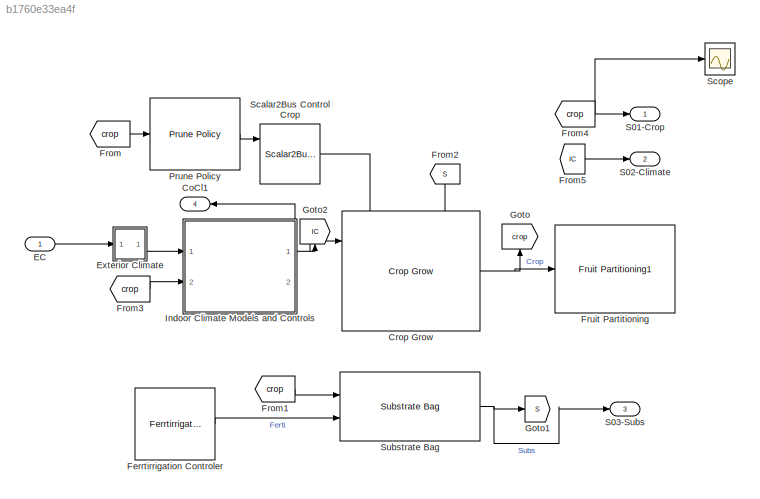
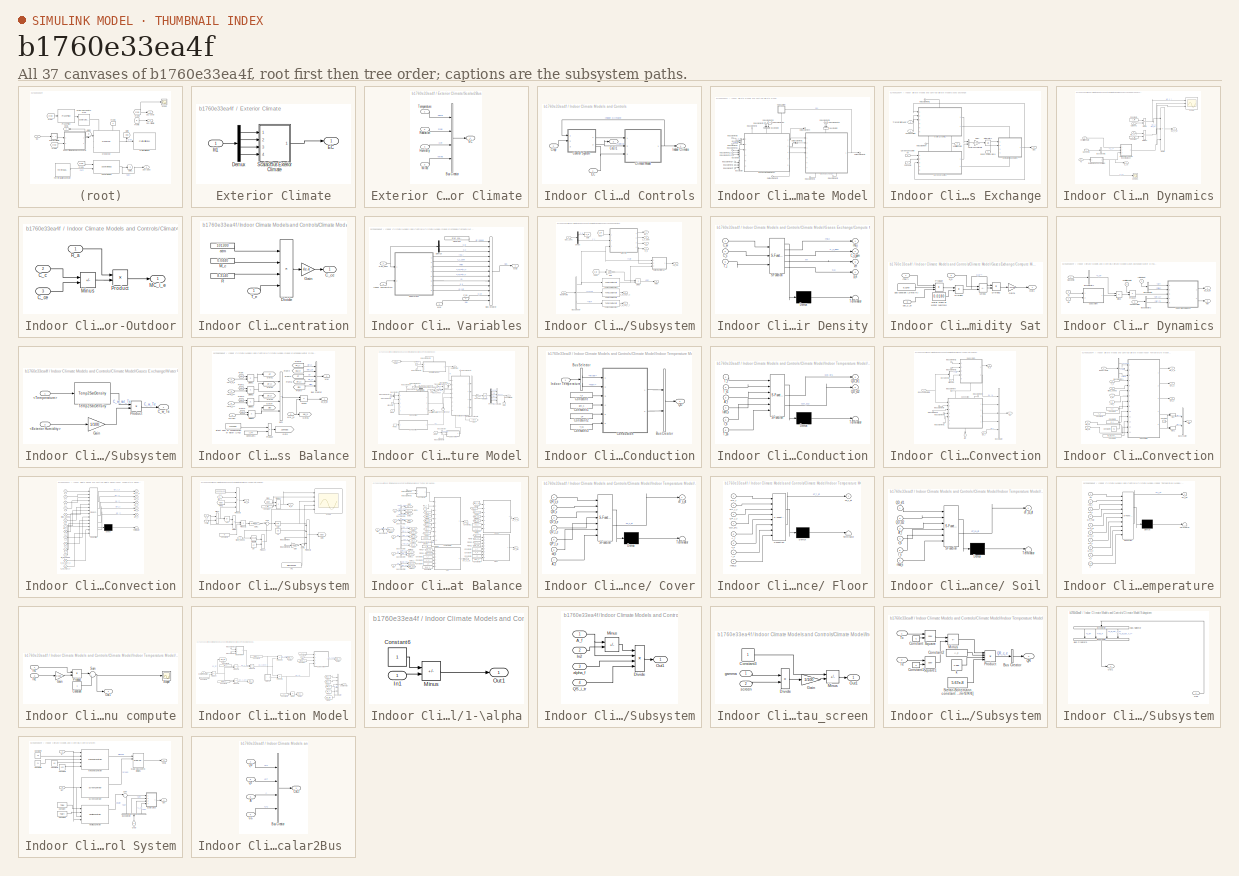
[diagram: thumbnail index - all 37 canvases of the model, root first then tree order]
MODEL slx_b1760e33ea4f
KIND model
CONFIG AbsTol = auto
CONFIG EnableMultiTasking = off
CONFIG FixedStep = auto
CONFIG MaxStep = auto
CONFIG MinStep = auto
CONFIG RelTol = 1e-3
CONFIG SampleTimeConstraint = Unconstrained
CONFIG SolverName = ode23
CONFIG StartTime = 0.0
CONFIG StopTime = tspan(end)
WORKSPACE source: mxarray member
WORKSPACE clima__A_c = 3295.16408265
WORKSPACE clima__A_f = 3100.53942116
WORKSPACE clima__G0 = [0.05 0.00070738]
WORKSPACE clima__H = 7.9995824611
WORKSPACE clima__T0 = [287.15 287.15 287.15 287.15]
WORKSPACE clima__T_ss = 280.150340169
WORKSPACE clima__alpha_c = 0.0100640347387
WORKSPACE clima__alpha_f = 0.0111385012129
WORKSPACE clima__alpha_i = 0.1
WORKSPACE clima__c_s = [1081 1081]
WORKSPACE clima__cd_c = 8736
WORKSPACE clima__d_c = 1.5
WORKSPACE clima__hour0 = 1
WORKSPACE clima__int_air_speed = 0.5
WORKSPACE clima__l_s = [0.1 0.1]
WORKSPACE clima__lam_s = [2.5 0.85]
WORKSPACE clima__minWindows = 0.299965865643
WORKSPACE clima__rhod_s = [2600 2500]
WORKSPACE clima__tau_c = 1
WORKSPACE crop__A_v = 2080
WORKSPACE crop__C = [0.01 0.001 0.01 0.01]
WORKSPACE crop__C_buf_max = 0.02
WORKSPACE crop__C_wv = 0.2
WORKSPACE crop__Chi_nutrients = [0.015625 0.0104166666667 0.00520833333333 0.00208333333333 0.00208333333333 0.00104166666667 0 0]
WORKSPACE crop__N = [0 0 0 0 0 0 0 0]
WORKSPACE crop__R = [0 0 0]
WORKSPACE crop__T_max_v = 40
WORKSPACE crop__T_max_v24 = 27
WORKSPACE crop__T_min_v = 6
WORKSPACE crop__T_min_v24 = 14
WORKSPACE crop__T_sum_end = 1035
WORKSPACE crop__T_v_start_fruit = 1100
WORKSPACE crop__Tsum = 0
WORKSPACE crop__Tv = 288
WORKSPACE crop__b_N_uptake = 0.5
WORKSPACE crop__c_fruit_g = 0.27
WORKSPACE crop__c_fruit_m = 2.3e-07
WORKSPACE crop__c_leaf_g = 0.28
WORKSPACE crop__c_leaf_m = 3.47e-07
WORKSPACE crop__c_stem_g = 0.3
WORKSPACE crop__c_stem_m = 1.47e-07
WORKSPACE crop__fraction_DM = 0.08
WORKSPACE crop__int_air_speed = 0.5
WORKSPACE crop__min_water_capacity = 0.1
WORKSPACE crop__plants_density = 2.1562
WORKSPACE crop__rg_fruit = 2e-07
WORKSPACE crop__rg_leaf = 9.5e-08
WORKSPACE crop__rg_stem = 7.4e-08
WORKSPACE crop__s_buforg_buf = -5000
WORKSPACE crop__s_max_T = 0.5793
WORKSPACE crop__s_max_T24 = 1.3904
WORKSPACE crop__s_min_T = -0.869
WORKSPACE crop__s_min_T24 = -1.1587
WORKSPACE heater__A_e = 0.0001
WORKSPACE heater__A_i = 0.008
WORKSPACE heater__T = 288
WORKSPACE heater__c = 5e-10
WORKSPACE heater__power = 60000000
WORKSPACE screen__Power = 100
WORKSPACE screen__Radthreshold = 900
WORKSPACE screen__beta = 2.23564167038e-14
WORKSPACE screen__gamma_max = 2.26308905438e-14
WORKSPACE screen__velocity = 0.333333333333
WORKSPACE subtrate__C_ws = 0.1
WORKSPACE subtrate__N = [0 0 0 0 0 0 0 0]
WORKSPACE subtrate__Nmin_subs = 1e-09
WORKSPACE subtrate__Vmax_subs = 10
WORKSPACE subtrate__Vmin_subs = 0.01
WORKSPACE tomato__Cfruit0 = 0.001
WORKSPACE windows__AR = 19.9974923936
WORKSPACE windows__Power = 100
WORKSPACE windows__RadThreshold = 10
WORKSPACE windows__max_night = 10
WORKSPACE windows__tau = 600
BLOCK [Outport] CoCl1
  NameLocation = top
  Port = 4
BLOCK [Reference] Crop Grow  REF=HORTISIM/Horticulture/Models/Crop Grow
  Ports = [3, 1]
  SourceBlock = HORTISIM/Horticulture/Models/Crop Grow
  SourceProductName = Horti Simulator
BLOCK [Inport] EC
BLOCK [SubSystem] Exterior Climate
  NameLocation = top
  Ports = [1, 1]
  RequestExecContextInheritance = off
BLOCK [Demux] Exterior Climate/Demux
  Ports = [1, 4]
BLOCK [Outport] Exterior Climate/EC
BLOCK [Inport] Exterior Climate/In1
BLOCK [SubSystem] Exterior Climate/Scalar2Bus Exterior Climate
  Ports = [4, 1]
  RequestExecContextInheritance = off
BLOCK [BusCreator] Exterior Climate/Scalar2Bus Exterior Climate/Bus Creator
  DisplayOption = bar
  InheritFromInputs = on
  Inputs = 4
  Ports = [4, 1]
BLOCK [Outport] Exterior Climate/Scalar2Bus Exterior Climate/EC
BLOCK [Inport] Exterior Climate/Scalar2Bus Exterior Climate/Humidity
  Port = 4
BLOCK [Inport] Exterior Climate/Scalar2Bus Exterior Climate/Radiation
  Port = 2
BLOCK [Inport] Exterior Climate/Scalar2Bus Exterior Climate/Temperature
BLOCK [Inport] Exterior Climate/Scalar2Bus Exterior Climate/Wind
  Port = 3
BLOCK [Reference] Ferrtirrigation Controler  REF=HORTISIM/Horticulture/Controls/Ferrtirrigation
 Controler
  NameLocation = top
  Ports = [0, 1]
  SourceBlock = HORTISIM/Horticulture/Controls/Ferrtirrigation\n Controler
  SourceProductName = Horti Simulator
BLOCK [From] From
  GotoTag = crop
BLOCK [From] From1
  GotoTag = crop
BLOCK [From] From2
  GotoTag = S
  NameLocation = left
BLOCK [From] From3
  GotoTag = crop
BLOCK [From] From4
  GotoTag = crop
BLOCK [From] From5
  GotoTag = IC
BLOCK [Reference] Fruit Partitioning  REF=HORTISIM/Horticulture/Models/Fruit Partitioning1
  Ports = [1, 1]
  SourceBlock = HORTISIM/Horticulture/Models/Fruit Partitioning1
  SourceProductName = Horti Simulator
BLOCK [Goto] Goto
  GotoTag = crop
  NameLocation = right
BLOCK [Goto] Goto1
  GotoTag = S
BLOCK [Goto] Goto2
  GotoTag = IC
  NameLocation = right
BLOCK [SubSystem] Indoor Climate Models and Controls
  PortSchema = {"entries":[{"content":{"sides":[{"content":{"connectorIds":["In1","In2"]},"type":"ConnectorPlacement.EquallySpacedRectSide","uuid":"f3cdb665-05cd-4c14-b99e-86a7cbd305f2"},{"content":{"connectorIds":["Out1"],"side":"RIGHT"},"type":"ConnectorPlacement.EquallySpacedRectSide","uuid":"ae9c6689-db0e-4adc-94c4-95f30f4a2385"},{"content":{"connectorIds":["Out2"],"side":"TOP"},"type":"ConnectorPlacement.Eq...<+252ch>
  Ports = [2, 2]
  RequestExecContextInheritance = off
BLOCK [SubSystem] Indoor Climate Models and Controls/Climate Model
  AncestorBlock = HORTISIM/Climate/Models/Climate Model
  Ports = [3, 1]
  RequestExecContextInheritance = off
BLOCK [BusCreator] Indoor Climate Models and Controls/Climate Model/Bus Creator
  DisplayOption = bar
  InheritFromInputs = on
  Inputs = 3
  Ports = [3, 1]
BLOCK [BusCreator] Indoor Climate Models and Controls/Climate Model/Bus Creator1
  DisplayOption = bar
  InheritFromInputs = on
  Inputs = 3
  Ports = [3, 1]
BLOCK [BusCreator] Indoor Climate Models and Controls/Climate Model/Bus Creator2
  DisplayOption = bar
  InheritFromInputs = on
  Inputs = 2
  NameLocation = left
  Ports = [2, 1]
BLOCK [BusCreator] Indoor Climate Models and Controls/Climate Model/Bus Creator3
  DisplayOption = bar
  InheritFromInputs = on
  Inputs = 3
  NameLocation = left
  Ports = [3, 1]
BLOCK [BusCreator] Indoor Climate Models and Controls/Climate Model/Bus Creator4
  DisplayOption = bar
  InheritFromInputs = on
  Inputs = 2
  Ports = [2, 1]
BLOCK [SubSystem] Indoor Climate Models and Controls/Climate Model/Gases Exchange
  NameLocation = top
  PortSchema = {"entries":[{"content":{"sides":[{"content":{"connectorIds":["In1","In2","In3","In4"]},"type":"ConnectorPlacement.EquallySpacedRectSide","uuid":"550da9a1-5f22-4db3-9ee3-e3750278f626"},{"content":{"connectorIds":["Out1"],"side":"RIGHT"},"type":"ConnectorPlacement.EquallySpacedRectSide","uuid":"cf559ec0-337d-42e7-96bb-a49ff9e682f6"},{"content":{"connectorIds":["In5"],"side":"TOP"},"type":"ConnectorP...<+418ch>
  Ports = [7, 1]
  RequestExecContextInheritance = off
BLOCK [Outport] Indoor Climate Models and Controls/Climate Model/Gases Exchange/ Gas
BLOCK [Inport] Indoor Climate Models and Controls/Climate Model/Gases Exchange/CO2 Pump
  Port = 7
BLOCK [Inport] Indoor Climate Models and Controls/Climate Model/Gases Exchange/Carbon Consumption
  Port = 6
BLOCK [SubSystem] Indoor Climate Models and Controls/Climate Model/Gases Exchange/Carbon Dynamics
  PortSchema = {"entries":[{"content":{"sides":[{"content":{"connectorIds":["In1","In2","In3"]},"type":"ConnectorPlacement.EquallySpacedRectSide","uuid":"ce6da3e3-21f1-4394-8848-c3b9ed37cfe4"},{"content":{"connectorIds":["Out1","Out2"],"side":"RIGHT"},"type":"ConnectorPlacement.EquallySpacedRectSide","uuid":"ff9d1dc7-ad1d-4f02-8424-55a857bc099f"},{"content":{"connectorIds":["In4","In5"],"side":"TOP"},"type":"Con...<+270ch>
  Ports = [5, 2]
  RequestExecContextInheritance = off
BLOCK [BusSelector] Indoor Climate Models and Controls/Climate Model/Gases Exchange/Carbon Dynamics/Bus Selector1
  OutputSignals = C_c
  Ports = [1, 1]
BLOCK [Outport] Indoor Climate Models and Controls/Climate Model/Gases Exchange/Carbon Dynamics/C_ce
  Port = 2
BLOCK [SubSystem] Indoor Climate Models and Controls/Climate Model/Gases Exchange/Carbon Dynamics/Carbon Exchange Indoor-Outdoor
  Ports = [3, 1]
  RequestExecContextInheritance = off
BLOCK [Inport] Indoor Climate Models and Controls/Climate Model/Gases Exchange/Carbon Dynamics/Carbon Exchange Indoor-Outdoor/C_c
  Port = 2
BLOCK [Inport] Indoor Climate Models and Controls/Climate Model/Gases Exchange/Carbon Dynamics/Carbon Exchange Indoor-Outdoor/C_ce
  Port = 3
BLOCK [Outport] Indoor Climate Models and Controls/Climate Model/Gases Exchange/Carbon Dynamics/Carbon Exchange Indoor-Outdoor/MC_i_e
BLOCK [Sum] Indoor Climate Models and Controls/Climate Model/Gases Exchange/Carbon Dynamics/Carbon Exchange Indoor-Outdoor/Minus
  IconShape = rectangular
  Inputs = +-
  Ports = [2, 1]
BLOCK [Product] Indoor Climate Models and Controls/Climate Model/Gases Exchange/Carbon Dynamics/Carbon Exchange Indoor-Outdoor/Product
  Ports = [2, 1]
BLOCK [Inport] Indoor Climate Models and Controls/Climate Model/Gases Exchange/Carbon Dynamics/Carbon Exchange Indoor-Outdoor/R_a
BLOCK [Inport] Indoor Climate Models and Controls/Climate Model/Gases Exchange/Carbon Dynamics/CarbonC
BLOCK [Constant] Indoor Climate Models and Controls/Climate Model/Gases Exchange/Carbon Dynamics/Constant
  Value = A_f*H
BLOCK [Constant] Indoor Climate Models and Controls/Climate Model/Gases Exchange/Carbon Dynamics/Constant1
  Value = A_f*H
BLOCK [Product] Indoor Climate Models and Controls/Climate Model/Gases Exchange/Carbon Dynamics/Divide
  Inputs = /*
  Ports = [2, 1]
BLOCK [Product] Indoor Climate Models and Controls/Climate Model/Gases Exchange/Carbon Dynamics/Divide1
  Inputs = */
  Ports = [2, 1]
BLOCK [SubSystem] Indoor Climate Models and Controls/Climate Model/Gases Exchange/Carbon Dynamics/External CO2 Concentration
  Ports = [1, 1]
  RequestExecContextInheritance = off
BLOCK [Outport] Indoor Climate Models and Controls/Climate Model/Gases Exchange/Carbon Dynamics/External CO2 Concentration/C_ce
BLOCK [Product] Indoor Climate Models and Controls/Climate Model/Gases Exchange/Carbon Dynamics/External CO2 Concentration/Divide
  Inputs = **//
  Ports = [4, 1]
BLOCK [Gain] Indoor Climate Models and Controls/Climate Model/Gases Exchange/Carbon Dynamics/External CO2 Concentration/Gain
  Gain = 4e-4
BLOCK [Constant] Indoor Climate Models and Controls/Climate Model/Gases Exchange/Carbon Dynamics/External CO2 Concentration/M_c
  Value = 0.0440
BLOCK [Constant] Indoor Climate Models and Controls/Climate Model/Gases Exchange/Carbon Dynamics/External CO2 Concentration/R
  Value = 8.3140
BLOCK [Inport] Indoor Climate Models and Controls/Climate Model/Gases Exchange/Carbon Dynamics/External CO2 Concentration/T_e
BLOCK [Constant] Indoor Climate Models and Controls/Climate Model/Gases Exchange/Carbon Dynamics/External CO2 Concentration/atm
  Value = 101300
BLOCK [Inport] Indoor Climate Models and Controls/Climate Model/Gases Exchange/Carbon Dynamics/GasComp
  Port = 3
BLOCK [Inport] Indoor Climate Models and Controls/Climate Model/Gases Exchange/Carbon Dynamics/MC_cc_i
  Port = 2
BLOCK [Scope] Indoor Climate Models and Controls/Climate Model/Gases Exchange/Carbon Dynamics/Scope
  Floating = off
  NumInputPorts = 3
  Ports = [3]
  ScopeSpecificationString = Simulink.scopes.TimeScopeBlockCfg('CurrentConfiguration', extmgr.ConfigurationSet(extmgr.Configuration('Core','General UI',true),extmgr.Configuration('Core','Source UI',true),extmgr.Configuration('Sources','WiredSimulink',true,'DataLoggingVariableName','ScopeData9'),extmgr.Configuration('Visuals','Time Domain',true,'SerializedDisplays',{struct('MinYLimReal','-0.00000004','MaxYLimReal','0.000000016...<+2820ch>
BLOCK [Scope] Indoor Climate Models and Controls/Climate Model/Gases Exchange/Carbon Dynamics/Scope1
  Floating = off
  NumInputPorts = 1
  Ports = [1]
  ScopeSpecificationString = Simulink.scopes.TimeScopeBlockCfg('CurrentConfiguration', extmgr.ConfigurationSet(extmgr.Configuration('Core','General UI',true),extmgr.Configuration('Core','Source UI',true),extmgr.Configuration('Sources','WiredSimulink',true,'DataLoggingVariableName','ScopeData1'),extmgr.Configuration('Visuals','Time Domain',true,'SerializedDisplays',{struct('MinYLimReal','0.000723','MaxYLimReal','0.000797','YLa...<+1423ch>
BLOCK [Sum] Indoor Climate Models and Controls/Climate Model/Gases Exchange/Carbon Dynamics/Sum1
  IconShape = rectangular
  Inputs = |++-
  Ports = [3, 1]
BLOCK [Inport] Indoor Climate Models and Controls/Climate Model/Gases Exchange/Carbon Dynamics/Te
  Port = 4
BLOCK [Inport] Indoor Climate Models and Controls/Climate Model/Gases Exchange/Carbon Dynamics/Ventilation Rate
  Port = 5
BLOCK [Outport] Indoor Climate Models and Controls/Climate Model/Gases Exchange/Carbon Dynamics/dC_c_dt
BLOCK [SubSystem] Indoor Climate Models and Controls/Climate Model/Gases Exchange/Compute Mid Variables
  PortSchema = {"entries":[{"content":{"sides":[{"content":{"connectorIds":["In1","In2"]},"type":"ConnectorPlacement.EquallySpacedRectSide","uuid":"c9e251e2-f19d-4856-b15c-3b9f1eb64f83"},{"content":{"connectorIds":["Out1"],"side":"RIGHT"},"type":"ConnectorPlacement.EquallySpacedRectSide","uuid":"10734817-c937-42fb-8ae5-9505620c6f0f"},{"content":{"connectorIds":["In3"],"side":"TOP"},"type":"ConnectorPlacement.Equ...<+400ch>
  Ports = [4, 1]
  RequestExecContextInheritance = off
BLOCK [BusCreator] Indoor Climate Models and Controls/Climate Model/Gases Exchange/Compute Mid Variables/Bus Creator
  DisplayOption = bar
  InheritFromInputs = on
  Inputs = 13
  Ports = [13, 1]
BLOCK [Inport] Indoor Climate Models and Controls/Climate Model/Gases Exchange/Compute Mid Variables/C_ce
  Port = 4
BLOCK [Constant] Indoor Climate Models and Controls/Climate Model/Gases Exchange/Compute Mid Variables/Constant
  Value = int_air_speed
BLOCK [Demux] Indoor Climate Models and Controls/Climate Model/Gases Exchange/Compute Mid Variables/Demux
  Outputs = 2
  Ports = [1, 2]
BLOCK [Outport] Indoor Climate Models and Controls/Climate Model/Gases Exchange/Compute Mid Variables/Gas
BLOCK [Inport] Indoor Climate Models and Controls/Climate Model/Gases Exchange/Compute Mid Variables/Gas_Conc
BLOCK [Inport] Indoor Climate Models and Controls/Climate Model/Gases Exchange/Compute Mid Variables/Indoor Temperature
  Port = 2
BLOCK [Inport] Indoor Climate Models and Controls/Climate Model/Gases Exchange/Compute Mid Variables/MW
  Port = 3
BLOCK [SubSystem] Indoor Climate Models and Controls/Climate Model/Gases Exchange/Compute Mid Variables/Subsystem
  Ports = [2, 8]
  RequestExecContextInheritance = off
BLOCK [SubSystem] Indoor Climate Models and Controls/Climate Model/Gases Exchange/Compute Mid Variables/Subsystem/Air Density
  ErrorFcn = Stateflow.Translate.translate
  PermitHierarchicalResolution = ExplicitOnly
  Ports = [3, 4]
  RequestExecContextInheritance = off
  SFBlockType = MATLAB Function
  TreatAsAtomicUnit = on
BLOCK [Demux] Indoor Climate Models and Controls/Climate Model/Gases Exchange/Compute Mid Variables/Subsystem/Air Density/ Demux 
  Outputs = 1
  Ports = [1, 1]
BLOCK [S-Function] Indoor Climate Models and Controls/Climate Model/Gases Exchange/Compute Mid Variables/Subsystem/Air Density/ SFunction 
  EnableBusSupport = on
  FunctionName = sf_sfun
  PortCounts = [3 5]
  Ports = [3, 5]
  SFcnIsStateOwnerBlock = off
  SFunctionDeploymentMode = off
  Tag = Stateflow S-Function 4
BLOCK [Terminator] Indoor Climate Models and Controls/Climate Model/Gases Exchange/Compute Mid Variables/Subsystem/Air Density/ Terminator 
BLOCK [Inport] Indoor Climate Models and Controls/Climate Model/Gases Exchange/Compute Mid Variables/Subsystem/Air Density/C_c
  Port = 2
BLOCK [Outport] Indoor Climate Models and Controls/Climate Model/Gases Exchange/Compute Mid Variables/Subsystem/Air Density/C_c_ppm
  Port = 2
BLOCK [Inport] Indoor Climate Models and Controls/Climate Model/Gases Exchange/Compute Mid Variables/Subsystem/Air Density/C_w
BLOCK [Inport] Indoor Climate Models and Controls/Climate Model/Gases Exchange/Compute Mid Variables/Subsystem/Air Density/T_i
  Port = 3
BLOCK [Outport] Indoor Climate Models and Controls/Climate Model/Gases Exchange/Compute Mid Variables/Subsystem/Air Density/p_a
  Port = 4
BLOCK [Outport] Indoor Climate Models and Controls/Climate Model/Gases Exchange/Compute Mid Variables/Subsystem/Air Density/rho_i
BLOCK [Outport] Indoor Climate Models and Controls/Climate Model/Gases Exchange/Compute Mid Variables/Subsystem/Air Density/xH
  Port = 3
BLOCK [BusSelector] Indoor Climate Models and Controls/Climate Model/Gases Exchange/Compute Mid Variables/Subsystem/Bus Selector
  OutputSignals = Tair,Tcover,Tfloor
  Ports = [1, 3]
BLOCK [Outport] Indoor Climate Models and Controls/Climate Model/Gases Exchange/Compute Mid Variables/Subsystem/C_c_ppm
  Port = 2
BLOCK [Outport] Indoor Climate Models and Controls/Climate Model/Gases Exchange/Compute Mid Variables/Subsystem/C_w_sat_T_c
  Port = 4
BLOCK [Outport] Indoor Climate Models and Controls/Climate Model/Gases Exchange/Compute Mid Variables/Subsystem/C_w_sat_T_f
  Port = 5
BLOCK [Demux] Indoor Climate Models and Controls/Climate Model/Gases Exchange/Compute Mid Variables/Subsystem/Demux
  Outputs = 2
  Ports = [1, 2]
BLOCK [Product] Indoor Climate Models and Controls/Climate Model/Gases Exchange/Compute Mid Variables/Subsystem/Divide
  Inputs = */
  Ports = [2, 1]
BLOCK [From] Indoor Climate Models and Controls/Climate Model/Gases Exchange/Compute Mid Variables/Subsystem/From
  GotoTag = C_w
BLOCK [From] Indoor Climate Models and Controls/Climate Model/Gases Exchange/Compute Mid Variables/Subsystem/From2
  GotoTag = C_w
BLOCK [Gain] Indoor Climate Models and Controls/Climate Model/Gases Exchange/Compute Mid Variables/Subsystem/Gain
  Gain = 100
BLOCK [Inport] Indoor Climate Models and Controls/Climate Model/Gases Exchange/Compute Mid Variables/Subsystem/Gas_Conc
BLOCK [Goto] Indoor Climate Models and Controls/Climate Model/Gases Exchange/Compute Mid Variables/Subsystem/Goto
  GotoTag = C_w
BLOCK [Outport] Indoor Climate Models and Controls/Climate Model/Gases Exchange/Compute Mid Variables/Subsystem/HRInt
  Port = 3
BLOCK [Inport] Indoor Climate Models and Controls/Climate Model/Gases Exchange/Compute Mid Variables/Subsystem/IndoorTemp
  Port = 2
BLOCK [SubSystem] Indoor Climate Models and Controls/Climate Model/Gases Exchange/Compute Mid Variables/Subsystem/Ratio of Humidity Sat
  Ports = [3, 1]
  RequestExecContextInheritance = off
BLOCK [Constant] Indoor Climate Models and Controls/Climate Model/Gases Exchange/Compute Mid Variables/Subsystem/Ratio of Humidity Sat/ molar mass of water [kg//mol]
  Value = 0.0180
BLOCK [Inport] Indoor Climate Models and Controls/Climate Model/Gases Exchange/Compute Mid Variables/Subsystem/Ratio of Humidity Sat/<Tair>
BLOCK [Product] Indoor Climate Models and Controls/Climate Model/Gases Exchange/Compute Mid Variables/Subsystem/Ratio of Humidity Sat/Divide1
  Inputs = */
  Ports = [2, 1]
BLOCK [Product] Indoor Climate Models and Controls/Climate Model/Gases Exchange/Compute Mid Variables/Subsystem/Ratio of Humidity Sat/Divide2
  Inputs = */
  Ports = [2, 1]
BLOCK [Gain] Indoor Climate Models and Controls/Climate Model/Gases Exchange/Compute Mid Variables/Subsystem/Ratio of Humidity Sat/Gain1
  Gain = 0.62198
BLOCK [Sum] Indoor Climate Models and Controls/Climate Model/Gases Exchange/Compute Mid Variables/Subsystem/Ratio of Humidity Sat/Minus
  IconShape = rectangular
  Inputs = +-
  Ports = [2, 1]
BLOCK [Outport] Indoor Climate Models and Controls/Climate Model/Gases Exchange/Compute Mid Variables/Subsystem/Ratio of Humidity Sat/Out1
BLOCK [Product] Indoor Climate Models and Controls/Climate Model/Gases Exchange/Compute Mid Variables/Subsystem/Ratio of Humidity Sat/Product
  Inputs = 3
  Ports = [3, 1]
BLOCK [Constant] Indoor Climate Models and Controls/Climate Model/Gases Exchange/Compute Mid Variables/Subsystem/Ratio of Humidity Sat/gas constant [J//mol//K]
  Value = 8.3140
BLOCK [Inport] Indoor Climate Models and Controls/Climate Model/Gases Exchange/Compute Mid Variables/Subsystem/Ratio of Humidity Sat/p_a
  Port = 2
BLOCK [Inport] Indoor Climate Models and Controls/Climate Model/Gases Exchange/Compute Mid Variables/Subsystem/Ratio of Humidity Sat/sat_C_w
  Port = 3
BLOCK [Reference] Indoor Climate Models and Controls/Climate Model/Gases Exchange/Compute Mid Variables/Subsystem/Temp2SatDensity  REF=HORTISIM/Other 
Functions/Temp2SatDensity
  Ports = [1, 1]
  SourceBlock = HORTISIM/Other \nFunctions/Temp2SatDensity
  SourceProductName = Horti Simulator
  SourceType = SubSystem
BLOCK [Reference] Indoor Climate Models and Controls/Climate Model/Gases Exchange/Compute Mid Variables/Subsystem/Temp2SatDensity1  REF=HORTISIM/Other 
Functions/Temp2SatDensity
  Ports = [1, 1]
  SourceBlock = HORTISIM/Other \nFunctions/Temp2SatDensity
  SourceProductName = Horti Simulator
  SourceType = SubSystem
BLOCK [Reference] Indoor Climate Models and Controls/Climate Model/Gases Exchange/Compute Mid Variables/Subsystem/Temp2SatDensity2  REF=HORTISIM/Other 
Functions/Temp2SatDensity
  Ports = [1, 1]
  SourceBlock = HORTISIM/Other \nFunctions/Temp2SatDensity
  SourceProductName = Horti Simulator
  SourceType = SubSystem
BLOCK [Outport] Indoor Climate Models and Controls/Climate Model/Gases Exchange/Compute Mid Variables/Subsystem/p_a
  Port = 7
BLOCK [Outport] Indoor Climate Models and Controls/Climate Model/Gases Exchange/Compute Mid Variables/Subsystem/rho_i
BLOCK [Outport] Indoor Climate Models and Controls/Climate Model/Gases Exchange/Compute Mid Variables/Subsystem/xH
  Port = 6
BLOCK [Outport] Indoor Climate Models and Controls/Climate Model/Gases Exchange/Compute Mid Variables/Subsystem/xH_sat
  Port = 8
BLOCK [Inport] Indoor Climate Models and Controls/Climate Model/Gases Exchange/Condensation
  Port = 4
BLOCK [Gain] Indoor Climate Models and Controls/Climate Model/Gases Exchange/Gain1
  Gain = 24*3600
BLOCK [Inport] Indoor Climate Models and Controls/Climate Model/Gases Exchange/In Bus Element
  Port = 5
BLOCK [Inport] Indoor Climate Models and Controls/Climate Model/Gases Exchange/In Bus Element1
  Port = 5
BLOCK [Inport] Indoor Climate Models and Controls/Climate Model/Gases Exchange/Indoor Temperature
BLOCK [Integrator] Indoor Climate Models and Controls/Climate Model/Gases Exchange/Integrator1
  AbsoluteTolerance = 1e-5
  InitialCondition = G0
  Ports = [1, 1]
BLOCK [Inport] Indoor Climate Models and Controls/Climate Model/Gases Exchange/Transpiration Heat
  Port = 2
BLOCK [Concatenate] Indoor Climate Models and Controls/Climate Model/Gases Exchange/Vector Concatenate
  Ports = [2, 1]
BLOCK [Inport] Indoor Climate Models and Controls/Climate Model/Gases Exchange/Ventilation Rate
  NameLocation = top
  Port = 3
BLOCK [SubSystem] Indoor Climate Models and Controls/Climate Model/Gases Exchange/Water Dynamics
  PortSchema = {"entries":[{"content":{"sides":[{"content":{"connectorIds":["In1","In2","In3"]},"type":"ConnectorPlacement.EquallySpacedRectSide","uuid":"ce6da3e3-21f1-4394-8848-c3b9ed37cfe4"},{"content":{"connectorIds":["Out1","Out2"],"side":"RIGHT"},"type":"ConnectorPlacement.EquallySpacedRectSide","uuid":"ff9d1dc7-ad1d-4f02-8424-55a857bc099f"},{"content":{"connectorIds":["In4"],"side":"TOP"},"type":"Connector...<+419ch>
  Ports = [6, 2]
  RequestExecContextInheritance = off
BLOCK [BusSelector] Indoor Climate Models and Controls/Climate Model/Gases Exchange/Water Dynamics/Bus Selector
  OutputSignals = QT,Qfog
  Ports = [1, 2]
BLOCK [BusSelector] Indoor Climate Models and Controls/Climate Model/Gases Exchange/Water Dynamics/Bus Selector1
  OutputSignals = C_w
  Ports = [1, 1]
BLOCK [BusSelector] Indoor Climate Models and Controls/Climate Model/Gases Exchange/Water Dynamics/Bus Selector2
  OutputSignals = QP_i_c,QP_i_f
  Ports = [1, 2]
BLOCK [Inport] Indoor Climate Models and Controls/Climate Model/Gases Exchange/Water Dynamics/Condensation
  Port = 3
BLOCK [Inport] Indoor Climate Models and Controls/Climate Model/Gases Exchange/Water Dynamics/GasComp
BLOCK [Inport] Indoor Climate Models and Controls/Climate Model/Gases Exchange/Water Dynamics/He
  Port = 4
BLOCK [Inport] Indoor Climate Models and Controls/Climate Model/Gases Exchange/Water Dynamics/Latent Heat
  NameLocation = left
  Port = 2
BLOCK [Outport] Indoor Climate Models and Controls/Climate Model/Gases Exchange/Water Dynamics/MW
  Port = 2
BLOCK [Sum] Indoor Climate Models and Controls/Climate Model/Gases Exchange/Water Dynamics/Minus
  IconShape = rectangular
  Inputs = +-
  Ports = [2, 1]
BLOCK [Product] Indoor Climate Models and Controls/Climate Model/Gases Exchange/Water Dynamics/Product
  Ports = [2, 1]
BLOCK [SubSystem] Indoor Climate Models and Controls/Climate Model/Gases Exchange/Water Dynamics/Subsystem
  Ports = [2, 1]
  RequestExecContextInheritance = off
BLOCK [Inport] Indoor Climate Models and Controls/Climate Model/Gases Exchange/Water Dynamics/Subsystem/<Exterior Humidity>
  Port = 2
BLOCK [Inport] Indoor Climate Models and Controls/Climate Model/Gases Exchange/Water Dynamics/Subsystem/<Temperature>
BLOCK [Outport] Indoor Climate Models and Controls/Climate Model/Gases Exchange/Water Dynamics/Subsystem/C_w_Te
BLOCK [Gain] Indoor Climate Models and Controls/Climate Model/Gases Exchange/Water Dynamics/Subsystem/Gain
  Gain = 1/100
BLOCK [Product] Indoor Climate Models and Controls/Climate Model/Gases Exchange/Water Dynamics/Subsystem/Product
  Ports = [2, 1]
BLOCK [Reference] Indoor Climate Models and Controls/Climate Model/Gases Exchange/Water Dynamics/Subsystem/Temp2SatDensity  REF=HORTISIM/Other 
Functions/Temp2SatDensity
  Ports = [1, 1]
  SourceBlock = HORTISIM/Other \nFunctions/Temp2SatDensity
  SourceProductName = Horti Simulator
  SourceType = SubSystem
BLOCK [Inport] Indoor Climate Models and Controls/Climate Model/Gases Exchange/Water Dynamics/Te
  Port = 5
BLOCK [SubSystem] Indoor Climate Models and Controls/Climate Model/Gases Exchange/Water Dynamics/Vapor Mass Balance
  Ports = [5, 2]
  RequestExecContextInheritance = off
BLOCK [Inport] Indoor Climate Models and Controls/Climate Model/Gases Exchange/Water Dynamics/Vapor Mass Balance/<QP_i_c>
  Port = 4
BLOCK [Inport] Indoor Climate Models and Controls/Climate Model/Gases Exchange/Water Dynamics/Vapor Mass Balance/<QP_i_f>
  Port = 5
BLOCK [Inport] Indoor Climate Models and Controls/Climate Model/Gases Exchange/Water Dynamics/Vapor Mass Balance/<QT_v_i>
BLOCK [Inport] Indoor Climate Models and Controls/Climate Model/Gases Exchange/Water Dynamics/Vapor Mass Balance/<Qfog>
  Port = 2
BLOCK [BusCreator] Indoor Climate Models and Controls/Climate Model/Gases Exchange/Water Dynamics/Vapor Mass Balance/Bus Creator
  DisplayOption = bar
  InheritFromInputs = on
  Inputs = 5
  Ports = [5, 1]
BLOCK [Constant] Indoor Climate Models and Controls/Climate Model/Gases Exchange/Water Dynamics/Vapor Mass Balance/Constant1
  Value = A_f*H
BLOCK [Product] Indoor Climate Models and Controls/Climate Model/Gases Exchange/Water Dynamics/Vapor Mass Balance/Divide1
  Inputs = /*
  Ports = [2, 1]
BLOCK [Product] Indoor Climate Models and Controls/Climate Model/Gases Exchange/Water Dynamics/Vapor Mass Balance/Divide2
  Inputs = /*
  Ports = [2, 1]
BLOCK [Product] Indoor Climate Models and Controls/Climate Model/Gases Exchange/Water Dynamics/Vapor Mass Balance/Divide3
  Inputs = /*
  Ports = [2, 1]
BLOCK [Product] Indoor Climate Models and Controls/Climate Model/Gases Exchange/Water Dynamics/Vapor Mass Balance/Divide4
  Inputs = /*
  Ports = [2, 1]
BLOCK [From] Indoor Climate Models and Controls/Climate Model/Gases Exchange/Water Dynamics/Vapor Mass Balance/From
  GotoTag = J2Mass
BLOCK [From] Indoor Climate Models and Controls/Climate Model/Gases Exchange/Water Dynamics/Vapor Mass Balance/From1
  GotoTag = J2Mass
BLOCK [From] Indoor Climate Models and Controls/Climate Model/Gases Exchange/Water Dynamics/Vapor Mass Balance/From2
  GotoTag = J2Mass
BLOCK [From] Indoor Climate Models and Controls/Climate Model/Gases Exchange/Water Dynamics/Vapor Mass Balance/From3
  GotoTag = J2Mass
BLOCK [From] Indoor Climate Models and Controls/Climate Model/Gases Exchange/Water Dynamics/Vapor Mass Balance/From4
  GotoTag = MW_i_e
BLOCK [From] Indoor Climate Models and Controls/Climate Model/Gases Exchange/Water Dynamics/Vapor Mass Balance/From5
  GotoTag = QT
BLOCK [From] Indoor Climate Models and Controls/Climate Model/Gases Exchange/Water Dynamics/Vapor Mass Balance/From6
  GotoTag = QP_i_c
BLOCK [From] Indoor Climate Models and Controls/Climate Model/Gases Exchange/Water Dynamics/Vapor Mass Balance/From7
  GotoTag = Qfog
BLOCK [From] Indoor Climate Models and Controls/Climate Model/Gases Exchange/Water Dynamics/Vapor Mass Balance/From8
  GotoTag = QP_i_f
BLOCK [Goto] Indoor Climate Models and Controls/Climate Model/Gases Exchange/Water Dynamics/Vapor Mass Balance/Goto
  GotoTag = J2Mass
BLOCK [Goto] Indoor Climate Models and Controls/Climate Model/Gases Exchange/Water Dynamics/Vapor Mass Balance/Goto1
  GotoTag = QT
BLOCK [Goto] Indoor Climate Models and Controls/Climate Model/Gases Exchange/Water Dynamics/Vapor Mass Balance/Goto2
  GotoTag = QP_i_c
BLOCK [Goto] Indoor Climate Models and Controls/Climate Model/Gases Exchange/Water Dynamics/Vapor Mass Balance/Goto3
  GotoTag = QP_i_f
BLOCK [Goto] Indoor Climate Models and Controls/Climate Model/Gases Exchange/Water Dynamics/Vapor Mass Balance/Goto4
  GotoTag = Qfog
BLOCK [Goto] Indoor Climate Models and Controls/Climate Model/Gases Exchange/Water Dynamics/Vapor Mass Balance/Goto5
  GotoTag = MW_i_e
BLOCK [Outport] Indoor Climate Models and Controls/Climate Model/Gases Exchange/Water Dynamics/Vapor Mass Balance/MW
  Port = 2
BLOCK [Inport] Indoor Climate Models and Controls/Climate Model/Gases Exchange/Water Dynamics/Vapor Mass Balance/MW_i_e
  Port = 3
BLOCK [Sum] Indoor Climate Models and Controls/Climate Model/Gases Exchange/Water Dynamics/Vapor Mass Balance/Minus
  IconShape = rectangular
  Inputs = +-
  Ports = [2, 1]
BLOCK [Product] Indoor Climate Models and Controls/Climate Model/Gases Exchange/Water Dynamics/Vapor Mass Balance/Product
  Ports = [2, 1]
BLOCK [Sum] Indoor Climate Models and Controls/Climate Model/Gases Exchange/Water Dynamics/Vapor Mass Balance/Sum
  IconShape = rectangular
  Inputs = +--+
  Ports = [4, 1]
BLOCK [Outport] Indoor Climate Models and Controls/Climate Model/Gases Exchange/Water Dynamics/Vapor Mass Balance/dC_w_dt
BLOCK [Constant] Indoor Climate Models and Controls/Climate Model/Gases Exchange/Water Dynamics/Vapor Mass Balance/latent heat of condensation of water [J//kg]
  Value = 2437000
BLOCK [Inport] Indoor Climate Models and Controls/Climate Model/Gases Exchange/Water Dynamics/Ventilation Rate
  NameLocation = left
  Port = 6
BLOCK [Outport] Indoor Climate Models and Controls/Climate Model/Gases Exchange/Water Dynamics/dC_w_dt
BLOCK [Inport] Indoor Climate Models and Controls/Climate Model/In Bus Element1
BLOCK [Inport] Indoor Climate Models and Controls/Climate Model/In Bus Element10
  NameLocation = left
  Port = 3
BLOCK [Inport] Indoor Climate Models and Controls/Climate Model/In Bus Element11
  Port = 3
BLOCK [Inport] Indoor Climate Models and Controls/Climate Model/In Bus Element12
  Port = 3
BLOCK [Inport] Indoor Climate Models and Controls/Climate Model/In Bus Element13
  Port = 3
BLOCK [Inport] Indoor Climate Models and Controls/Climate Model/In Bus Element14
BLOCK [Inport] Indoor Climate Models and Controls/Climate Model/In Bus Element15
  NameLocation = left
  Port = 2
BLOCK [Inport] Indoor Climate Models and Controls/Climate Model/In Bus Element16
  NameLocation = left
  Port = 2
BLOCK [Inport] Indoor Climate Models and Controls/Climate Model/In Bus Element2
BLOCK [Inport] Indoor Climate Models and Controls/Climate Model/In Bus Element3
  NameLocation = left
  Port = 2
BLOCK [Inport] Indoor Climate Models and Controls/Climate Model/In Bus Element4
  Port = 2
BLOCK [Inport] Indoor Climate Models and Controls/Climate Model/In Bus Element5
  NameLocation = left
  Port = 2
BLOCK [Inport] Indoor Climate Models and Controls/Climate Model/In Bus Element6
  Port = 2
BLOCK [Inport] Indoor Climate Models and Controls/Climate Model/In Bus Element7
BLOCK [Inport] Indoor Climate Models and Controls/Climate Model/In Bus Element8
  Port = 2
BLOCK [Inport] Indoor Climate Models and Controls/Climate Model/In Bus Element9
  NameLocation = left
  Port = 3
BLOCK [SubSystem] Indoor Climate Models and Controls/Climate Model/Indoor Temperature Model
  PortSchema = {"entries":[{"content":{"sides":[{"content":{"connectorIds":["In1","In2","In3"]},"type":"ConnectorPlacement.EquallySpacedRectSide","uuid":"402556d7-b277-4cb3-8556-883bae99c69c"},{"content":{"connectorIds":["Out1","Out2","Out3","Out4"],"side":"RIGHT"},"type":"ConnectorPlacement.EquallySpacedRectSide","uuid":"e8ec9f82-8759-4d98-a5e5-ef4db996ec8c"},{"content":{"connectorIds":["In4","In5","In6"],"side...<+440ch>
  Ports = [6, 5]
  RequestExecContextInheritance = off
BLOCK [BusCreator] Indoor Climate Models and Controls/Climate Model/Indoor Temperature Model/Bus Creator
  DisplayOption = bar
  InheritFromInputs = on
  Inputs = 2
  Ports = [2, 1]
BLOCK [BusCreator] Indoor Climate Models and Controls/Climate Model/Indoor Temperature Model/Bus Creator1
  DisplayOption = bar
  InheritFromInputs = on
  Inputs = 2
  Ports = [2, 1]
BLOCK [BusCreator] Indoor Climate Models and Controls/Climate Model/Indoor Temperature Model/Bus Creator2
  DisplayOption = bar
  InheritFromInputs = on
  Inputs = 4
  NameLocation = left
  Ports = [4, 1]
BLOCK [BusCreator] Indoor Climate Models and Controls/Climate Model/Indoor Temperature Model/Bus Creator3
  DisplayOption = bar
  InheritFromInputs = on
  Inputs = 4
  Ports = [4, 1]
BLOCK [BusSelector] Indoor Climate Models and Controls/Climate Model/Indoor Temperature Model/Bus Selector
  OutputSignals = Tcover
  Ports = [1, 1]
BLOCK [Outport] Indoor Climate Models and Controls/Climate Model/Indoor Temperature Model/Condensation Heat
  NameLocation = left
  Port = 4
BLOCK [SubSystem] Indoor Climate Models and Controls/Climate Model/Indoor Temperature Model/Conduction
  Ports = [1, 1]
  RequestExecContextInheritance = off
BLOCK [BusCreator] Indoor Climate Models and Controls/Climate Model/Indoor Temperature Model/Conduction/Bus Creator
  DisplayOption = bar
  InheritFromInputs = on
  Inputs = 2
  Ports = [2, 1]
BLOCK [BusSelector] Indoor Climate Models and Controls/Climate Model/Indoor Temperature Model/Conduction/Bus Selector
  OutputSignals = Tfloor,Tsoil
  Ports = [1, 2]
BLOCK [SubSystem] Indoor Climate Models and Controls/Climate Model/Indoor Temperature Model/Conduction/Conduction
  ErrorFcn = Stateflow.Translate.translate
  NameLocation = top
  PermitHierarchicalResolution = ExplicitOnly
  Ports = [6, 2]
  RequestExecContextInheritance = off
  SFBlockType = MATLAB Function
  TreatAsAtomicUnit = on
BLOCK [Demux] Indoor Climate Models and Controls/Climate Model/Indoor Temperature Model/Conduction/Conduction/ Demux 
  Outputs = 1
  Ports = [1, 1]
BLOCK [S-Function] Indoor Climate Models and Controls/Climate Model/Indoor Temperature Model/Conduction/Conduction/ SFunction 
  EnableBusSupport = on
  FunctionName = sf_sfun
  PortCounts = [6 3]
  Ports = [6, 3]
  SFcnIsStateOwnerBlock = off
  SFunctionDeploymentMode = off
  Tag = Stateflow S-Function 6
BLOCK [Terminator] Indoor Climate Models and Controls/Climate Model/Indoor Temperature Model/Conduction/Conduction/ Terminator 
BLOCK [Inport] Indoor Climate Models and Controls/Climate Model/Indoor Temperature Model/Conduction/Conduction/A_f
  Port = 3
BLOCK [Outport] Indoor Climate Models and Controls/Climate Model/Indoor Temperature Model/Conduction/Conduction/QD_s12
  Port = 2
BLOCK [Outport] Indoor Climate Models and Controls/Climate Model/Indoor Temperature Model/Conduction/Conduction/QD_sf1
BLOCK [Inport] Indoor Climate Models and Controls/Climate Model/Indoor Temperature Model/Conduction/Conduction/T_f
BLOCK [Inport] Indoor Climate Models and Controls/Climate Model/Indoor Temperature Model/Conduction/Conduction/T_s1
  Port = 2
BLOCK [Inport] Indoor Climate Models and Controls/Climate Model/Indoor Temperature Model/Conduction/Conduction/T_ss
  Port = 6
BLOCK [Inport] Indoor Climate Models and Controls/Climate Model/Indoor Temperature Model/Conduction/Conduction/l_s
  Port = 5
BLOCK [Inport] Indoor Climate Models and Controls/Climate Model/Indoor Temperature Model/Conduction/Conduction/lam_s
  Port = 4
BLOCK [Constant] Indoor Climate Models and Controls/Climate Model/Indoor Temperature Model/Conduction/Constant
  Value = A_f
BLOCK [Constant] Indoor Climate Models and Controls/Climate Model/Indoor Temperature Model/Conduction/Constant1
  Value = lam_s
BLOCK [Constant] Indoor Climate Models and Controls/Climate Model/Indoor Temperature Model/Conduction/Constant2
  Value = l_s
BLOCK [Constant] Indoor Climate Models and Controls/Climate Model/Indoor Temperature Model/Conduction/Constant3
  Value = T_ss
BLOCK [Inport] Indoor Climate Models and Controls/Climate Model/Indoor Temperature Model/Conduction/Indoor Temperature
BLOCK [Outport] Indoor Climate Models and Controls/Climate Model/Indoor Temperature Model/Conduction/QD
BLOCK [SubSystem] Indoor Climate Models and Controls/Climate Model/Indoor Temperature Model/Convection
  PortSchema = {"entries":[{"content":{"sides":[{"content":{"connectorIds":["In1","In2","In3"]},"type":"ConnectorPlacement.EquallySpacedRectSide","uuid":"3a7e199a-659d-4634-89e1-ef85cb7ed502"},{"content":{"connectorIds":["Out1","Out2","Out3"],"side":"RIGHT"},"type":"ConnectorPlacement.EquallySpacedRectSide","uuid":"10ed7806-8be5-4e88-a0ca-6abfb5c9ab8d"},{"content":{"connectorIds":["In4","In5"],"side":"TOP"},"typ...<+421ch>
  Ports = [5, 3]
  RequestExecContextInheritance = off
BLOCK [BusCreator] Indoor Climate Models and Controls/Climate Model/Indoor Temperature Model/Convection/Bus Creator
  DisplayOption = bar
  InheritFromInputs = on
  Inputs = 5
  Ports = [5, 1]
BLOCK [BusSelector] Indoor Climate Models and Controls/Climate Model/Indoor Temperature Model/Convection/Bus Selector1
  OutputSignals = Tair
  Ports = [1, 1]
BLOCK [SubSystem] Indoor Climate Models and Controls/Climate Model/Indoor Temperature Model/Convection/Convection
  PortSchema = {"entries":[{"content":{"sides":[{"content":{"connectorIds":["In1","In2","In3","In4","In5"]},"type":"ConnectorPlacement.EquallySpacedRectSide","uuid":"490685c0-4e11-426f-bb8f-3f4d655c5ac7"},{"content":{"connectorIds":["Out1","Out2","Out3"],"side":"RIGHT"},"type":"ConnectorPlacement.EquallySpacedRectSide","uuid":"d4812e49-5d44-4dbe-a973-0d0765960a30"},{"content":{"connectorIds":["In6","In7"],"side"...<+439ch>
  Ports = [7, 4]
  RequestExecContextInheritance = off
BLOCK [BusCreator] Indoor Climate Models and Controls/Climate Model/Indoor Temperature Model/Convection/Convection/Bus Creator
  DisplayOption = bar
  InheritFromInputs = on
  Inputs = 2
  Ports = [2, 1]
BLOCK [BusSelector] Indoor Climate Models and Controls/Climate Model/Indoor Temperature Model/Convection/Convection/Bus Selector1
  OutputSignals = Tcover,Tair,Tfloor
  Ports = [1, 3]
BLOCK [Inport] Indoor Climate Models and Controls/Climate Model/Indoor Temperature Model/Convection/Convection/C_w
  Port = 7
BLOCK [Constant] Indoor Climate Models and Controls/Climate Model/Indoor Temperature Model/Convection/Convection/Constant
  Value = 0
BLOCK [Constant] Indoor Climate Models and Controls/Climate Model/Indoor Temperature Model/Convection/Convection/Constant1
  Value = A_f
BLOCK [Constant] Indoor Climate Models and Controls/Climate Model/Indoor Temperature Model/Convection/Convection/Constant2
  Value = A_c
BLOCK [Constant] Indoor Climate Models and Controls/Climate Model/Indoor Temperature Model/Convection/Convection/Constant3
  Value = d_c
BLOCK [Constant] Indoor Climate Models and Controls/Climate Model/Indoor Temperature Model/Convection/Convection/Constant4
  Value = 0.5
BLOCK [Constant] Indoor Climate Models and Controls/Climate Model/Indoor Temperature Model/Convection/Convection/Constant5
  Value = int_air_speed
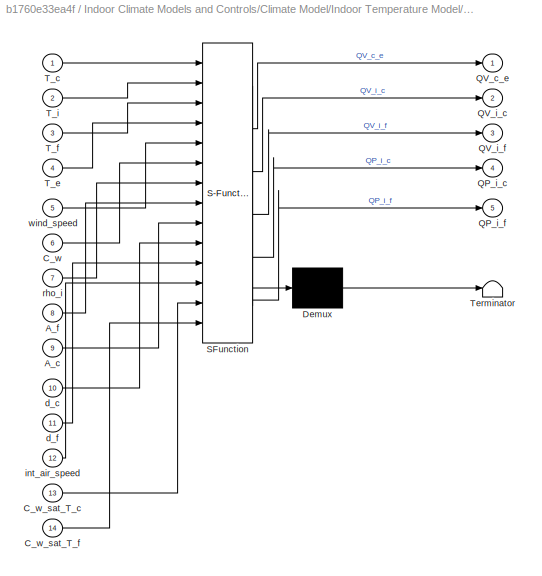
BLOCK [SubSystem] Indoor Climate Models and Controls/Climate Model/Indoor Temperature Model/Convection/Convection/Convection
  ErrorFcn = Stateflow.Translate.translate
  NameLocation = top
  PermitHierarchicalResolution = ExplicitOnly
  Ports = [14, 5]
  RequestExecContextInheritance = off
  SFBlockType = MATLAB Function
  TreatAsAtomicUnit = on
BLOCK [Demux] Indoor Climate Models and Controls/Climate Model/Indoor Temperature Model/Convection/Convection/Convection/ Demux 
  Outputs = 1
  Ports = [1, 1]
BLOCK [S-Function] Indoor Climate Models and Controls/Climate Model/Indoor Temperature Model/Convection/Convection/Convection/ SFunction 
  EnableBusSupport = on
  FunctionName = sf_sfun
  PortCounts = [14 6]
  Ports = [14, 6]
  SFcnIsStateOwnerBlock = off
  SFunctionDeploymentMode = off
  Tag = Stateflow S-Function 7
BLOCK [Terminator] Indoor Climate Models and Controls/Climate Model/Indoor Temperature Model/Convection/Convection/Convection/ Terminator 
BLOCK [Inport] Indoor Climate Models and Controls/Climate Model/Indoor Temperature Model/Convection/Convection/Convection/A_c
  Port = 9
BLOCK [Inport] Indoor Climate Models and Controls/Climate Model/Indoor Temperature Model/Convection/Convection/Convection/A_f
  Port = 8
BLOCK [Inport] Indoor Climate Models and Controls/Climate Model/Indoor Temperature Model/Convection/Convection/Convection/C_w
  Port = 6
BLOCK [Inport] Indoor Climate Models and Controls/Climate Model/Indoor Temperature Model/Convection/Convection/Convection/C_w_sat_T_c
  Port = 13
BLOCK [Inport] Indoor Climate Models and Controls/Climate Model/Indoor Temperature Model/Convection/Convection/Convection/C_w_sat_T_f
  Port = 14
BLOCK [Outport] Indoor Climate Models and Controls/Climate Model/Indoor Temperature Model/Convection/Convection/Convection/QP_i_c
  Port = 4
BLOCK [Outport] Indoor Climate Models and Controls/Climate Model/Indoor Temperature Model/Convection/Convection/Convection/QP_i_f
  Port = 5
BLOCK [Outport] Indoor Climate Models and Controls/Climate Model/Indoor Temperature Model/Convection/Convection/Convection/QV_c_e
BLOCK [Outport] Indoor Climate Models and Controls/Climate Model/Indoor Temperature Model/Convection/Convection/Convection/QV_i_c
  Port = 2
BLOCK [Outport] Indoor Climate Models and Controls/Climate Model/Indoor Temperature Model/Convection/Convection/Convection/QV_i_f
  Port = 3
BLOCK [Inport] Indoor Climate Models and Controls/Climate Model/Indoor Temperature Model/Convection/Convection/Convection/T_c
BLOCK [Inport] Indoor Climate Models and Controls/Climate Model/Indoor Temperature Model/Convection/Convection/Convection/T_e
  Port = 4
BLOCK [Inport] Indoor Climate Models and Controls/Climate Model/Indoor Temperature Model/Convection/Convection/Convection/T_f
  Port = 3
BLOCK [Inport] Indoor Climate Models and Controls/Climate Model/Indoor Temperature Model/Convection/Convection/Convection/T_i
  Port = 2
BLOCK [Inport] Indoor Climate Models and Controls/Climate Model/Indoor Temperature Model/Convection/Convection/Convection/d_c
  Port = 10
BLOCK [Inport] Indoor Climate Models and Controls/Climate Model/Indoor Temperature Model/Convection/Convection/Convection/d_f
  Port = 11
BLOCK [Inport] Indoor Climate Models and Controls/Climate Model/Indoor Temperature Model/Convection/Convection/Convection/int_air_speed
  Port = 12
BLOCK [Inport] Indoor Climate Models and Controls/Climate Model/Indoor Temperature Model/Convection/Convection/Convection/rho_i
  Port = 7
BLOCK [Inport] Indoor Climate Models and Controls/Climate Model/Indoor Temperature Model/Convection/Convection/Convection/wind_speed
  Port = 5
BLOCK [Inport] Indoor Climate Models and Controls/Climate Model/Indoor Temperature Model/Convection/Convection/Cw_Tc
  Port = 2
BLOCK [Inport] Indoor Climate Models and Controls/Climate Model/Indoor Temperature Model/Convection/Convection/Cw_Tf
  Port = 3
BLOCK [Inport] Indoor Climate Models and Controls/Climate Model/Indoor Temperature Model/Convection/Convection/IndoorTemp
BLOCK [MinMax] Indoor Climate Models and Controls/Climate Model/Indoor Temperature Model/Convection/Convection/Max
  Function = max
  Inputs = 2
  Ports = [2, 1]
BLOCK [MinMax] Indoor Climate Models and Controls/Climate Model/Indoor Temperature Model/Convection/Convection/Max1
  Function = max
  Inputs = 2
  Ports = [2, 1]
BLOCK [Outport] Indoor Climate Models and Controls/Climate Model/Indoor Temperature Model/Convection/Convection/QP
  Port = 4
BLOCK [Outport] Indoor Climate Models and Controls/Climate Model/Indoor Temperature Model/Convection/Convection/QV_c_e
BLOCK [Outport] Indoor Climate Models and Controls/Climate Model/Indoor Temperature Model/Convection/Convection/QV_i_c
  Port = 2
BLOCK [Outport] Indoor Climate Models and Controls/Climate Model/Indoor Temperature Model/Convection/Convection/QV_i_f
  Port = 3
BLOCK [Inport] Indoor Climate Models and Controls/Climate Model/Indoor Temperature Model/Convection/Convection/T_e
  Port = 4
BLOCK [Inport] Indoor Climate Models and Controls/Climate Model/Indoor Temperature Model/Convection/Convection/rho_i
  Port = 6
BLOCK [Inport] Indoor Climate Models and Controls/Climate Model/Indoor Temperature Model/Convection/Convection/wind_speed
  Port = 5
BLOCK [Inport] Indoor Climate Models and Controls/Climate Model/Indoor Temperature Model/Convection/In Bus Element
  Port = 5
BLOCK [Inport] Indoor Climate Models and Controls/Climate Model/Indoor Temperature Model/Convection/In Bus Element1
BLOCK [Inport] Indoor Climate Models and Controls/Climate Model/Indoor Temperature Model/Convection/In Bus Element2
BLOCK [Inport] Indoor Climate Models and Controls/Climate Model/Indoor Temperature Model/Convection/In Bus Element3
BLOCK [Inport] Indoor Climate Models and Controls/Climate Model/Indoor Temperature Model/Convection/In Bus Element4
BLOCK [Inport] Indoor Climate Models and Controls/Climate Model/Indoor Temperature Model/Convection/In Bus Element5
  NameLocation = top
  Port = 5
BLOCK [Inport] Indoor Climate Models and Controls/Climate Model/Indoor Temperature Model/Convection/In Bus Element6
  Port = 5
BLOCK [Inport] Indoor Climate Models and Controls/Climate Model/Indoor Temperature Model/Convection/In Bus Element7
  Port = 5
BLOCK [Inport] Indoor Climate Models and Controls/Climate Model/Indoor Temperature Model/Convection/Indoor Temperature
  Port = 3
BLOCK [Outport] Indoor Climate Models and Controls/Climate Model/Indoor Temperature Model/Convection/QP
  NameLocation = left
  Port = 2
BLOCK [Outport] Indoor Climate Models and Controls/Climate Model/Indoor Temperature Model/Convection/QV
  PortDimensions = 5
  VarSizeSig = No
BLOCK [Inport] Indoor Climate Models and Controls/Climate Model/Indoor Temperature Model/Convection/QV_i
  Port = 4
BLOCK [Outport] Indoor Climate Models and Controls/Climate Model/Indoor Temperature Model/Convection/R_a
  Port = 3
BLOCK [SubSystem] Indoor Climate Models and Controls/Climate Model/Indoor Temperature Model/Convection/Subsystem
  PortSchema = {"entries":[{"content":{"sides":[{"content":{"connectorIds":["In1","In2","In3","In4"]},"type":"ConnectorPlacement.EquallySpacedRectSide","uuid":"b628b76c-815c-4d2d-bf8b-9241abf78a18"},{"content":{"connectorIds":["Out1","Out2"],"side":"RIGHT"},"type":"ConnectorPlacement.EquallySpacedRectSide","uuid":"d01161a9-1f84-445a-b084-f8cb6d6fe506"},{"content":{"connectorIds":[],"side":"TOP"},"type":"Connecto...<+414ch>
  Ports = [5, 2]
  RequestExecContextInheritance = off
BLOCK [Inport] Indoor Climate Models and Controls/Climate Model/Indoor Temperature Model/Convection/Subsystem/<Tair>
  Port = 3
BLOCK [Constant] Indoor Climate Models and Controls/Climate Model/Indoor Temperature Model/Convection/Subsystem/AR1
  Value = minWindows
  VectorParams1D = off
BLOCK [Abs] Indoor Climate Models and Controls/Climate Model/Indoor Temperature Model/Convection/Subsystem/Abs
  SaturateOnIntegerOverflow = off
BLOCK [Constant] Indoor Climate Models and Controls/Climate Model/Indoor Temperature Model/Convection/Subsystem/Cd
  Value = 0.8
  VectorParams1D = off
BLOCK [Constant] Indoor Climate Models and Controls/Climate Model/Indoor Temperature Model/Convection/Subsystem/Constant
  Value = A_f*H
BLOCK [Constant] Indoor Climate Models and Controls/Climate Model/Indoor Temperature Model/Convection/Subsystem/Constant1
  Value = H
BLOCK [Constant] Indoor Climate Models and Controls/Climate Model/Indoor Temperature Model/Convection/Subsystem/Cw
  Value = 0.7
  VectorParams1D = off
BLOCK [Product] Indoor Climate Models and Controls/Climate Model/Indoor Temperature Model/Convection/Subsystem/Divide
  Inputs = */
  Ports = [2, 1]
BLOCK [Product] Indoor Climate Models and Controls/Climate Model/Indoor Temperature Model/Convection/Subsystem/Divide1
  Inputs = */
  Ports = [2, 1]
BLOCK [From] Indoor Climate Models and Controls/Climate Model/Indoor Temperature Model/Convection/Subsystem/From
  GotoTag = Vdot
BLOCK [From] Indoor Climate Models and Controls/Climate Model/Indoor Temperature Model/Convection/Subsystem/From1
  GotoTag = Vdot
BLOCK [Gain] Indoor Climate Models and Controls/Climate Model/Indoor Temperature Model/Convection/Subsystem/Gain
  Gain = 1/100
BLOCK [Gain] Indoor Climate Models and Controls/Climate Model/Indoor Temperature Model/Convection/Subsystem/Gain1
  Gain = 2*9.8100/4
BLOCK [Goto] Indoor Climate Models and Controls/Climate Model/Indoor Temperature Model/Convection/Subsystem/Goto
  GotoTag = Vdot
BLOCK [Inport] Indoor Climate Models and Controls/Climate Model/Indoor Temperature Model/Convection/Subsystem/In Bus Element
  Port = 4
BLOCK [Inport] Indoor Climate Models and Controls/Climate Model/Indoor Temperature Model/Convection/Subsystem/In Bus Element1
  Port = 4
BLOCK [Sum] Indoor Climate Models and Controls/Climate Model/Indoor Temperature Model/Convection/Subsystem/Minus
  IconShape = rectangular
  Inputs = -+
  Ports = [2, 1]
BLOCK [Product] Indoor Climate Models and Controls/Climate Model/Indoor Temperature Model/Convection/Subsystem/Product
  Ports = [2, 1]
BLOCK [Product] Indoor Climate Models and Controls/Climate Model/Indoor Temperature Model/Convection/Subsystem/Product1
  Ports = [2, 1]
BLOCK [Product] Indoor Climate Models and Controls/Climate Model/Indoor Temperature Model/Convection/Subsystem/Product2
  Inputs = 4
  Ports = [4, 1]
BLOCK [Product] Indoor Climate Models and Controls/Climate Model/Indoor Temperature Model/Convection/Subsystem/Product3
  Inputs = 4
  Ports = [4, 1]
BLOCK [Outport] Indoor Climate Models and Controls/Climate Model/Indoor Temperature Model/Convection/Subsystem/QV_i_e
  Port = 2
BLOCK [Outport] Indoor Climate Models and Controls/Climate Model/Indoor Temperature Model/Convection/Subsystem/R_a
BLOCK [Scope] Indoor Climate Models and Controls/Climate Model/Indoor Temperature Model/Convection/Subsystem/Scope
  Floating = off
  NumInputPorts = 5
  Ports = [5]
  ScopeSpecificationString = Simulink.scopes.TimeScopeBlockCfg('CurrentConfiguration', extmgr.ConfigurationSet(extmgr.Configuration('Core','General UI',true),extmgr.Configuration('Core','Source UI',true),extmgr.Configuration('Sources','WiredSimulink',true,'DataLoggingVariableName','ScopeData1'),extmgr.Configuration('Visuals','Time Domain',true,'SerializedDisplays',{struct('MinYLimReal','0.00523','MaxYLimReal','0.04847','YLabe...<+4164ch>
BLOCK [Sqrt] Indoor Climate Models and Controls/Climate Model/Indoor Temperature Model/Convection/Subsystem/Sqrt
BLOCK [Math] Indoor Climate Models and Controls/Climate Model/Indoor Temperature Model/Convection/Subsystem/Square
  Operator = square
  Ports = [1, 1]
BLOCK [Sum] Indoor Climate Models and Controls/Climate Model/Indoor Temperature Model/Convection/Subsystem/Sum
  Inputs = |++
  Ports = [2, 1]
BLOCK [Sum] Indoor Climate Models and Controls/Climate Model/Indoor Temperature Model/Convection/Subsystem/Sum1
  Inputs = |++
  Ports = [2, 1]
BLOCK [Inport] Indoor Climate Models and Controls/Climate Model/Indoor Temperature Model/Convection/Subsystem/T_e
BLOCK [Constant] Indoor Climate Models and Controls/Climate Model/Indoor Temperature Model/Convection/Subsystem/c_i
  Value = 1.0032e+03
  VectorParams1D = off
BLOCK [Inport] Indoor Climate Models and Controls/Climate Model/Indoor Temperature Model/Convection/Subsystem/rho_i
  Port = 5
BLOCK [Inport] Indoor Climate Models and Controls/Climate Model/Indoor Temperature Model/Convection/Subsystem/wind_speed
  Port = 2
BLOCK [Inport] Indoor Climate Models and Controls/Climate Model/Indoor Temperature Model/Convection/Windows
  Port = 2
BLOCK [Demux] Indoor Climate Models and Controls/Climate Model/Indoor Temperature Model/Demux
  Ports = [1, 4]
BLOCK [Inport] Indoor Climate Models and Controls/Climate Model/Indoor Temperature Model/Fog
  Port = 4
BLOCK [From] Indoor Climate Models and Controls/Climate Model/Indoor Temperature Model/From
  GotoTag = screen
BLOCK [From] Indoor Climate Models and Controls/Climate Model/Indoor Temperature Model/From1
  GotoTag = T
BLOCK [From] Indoor Climate Models and Controls/Climate Model/Indoor Temperature Model/From2
  GotoTag = T
BLOCK [From] Indoor Climate Models and Controls/Climate Model/Indoor Temperature Model/From3
  GotoTag = T
BLOCK [Goto] Indoor Climate Models and Controls/Climate Model/Indoor Temperature Model/Goto
  GotoTag = T
  NameLocation = left
BLOCK [Goto] Indoor Climate Models and Controls/Climate Model/Indoor Temperature Model/Goto1
  GotoTag = screen
  NameLocation = top
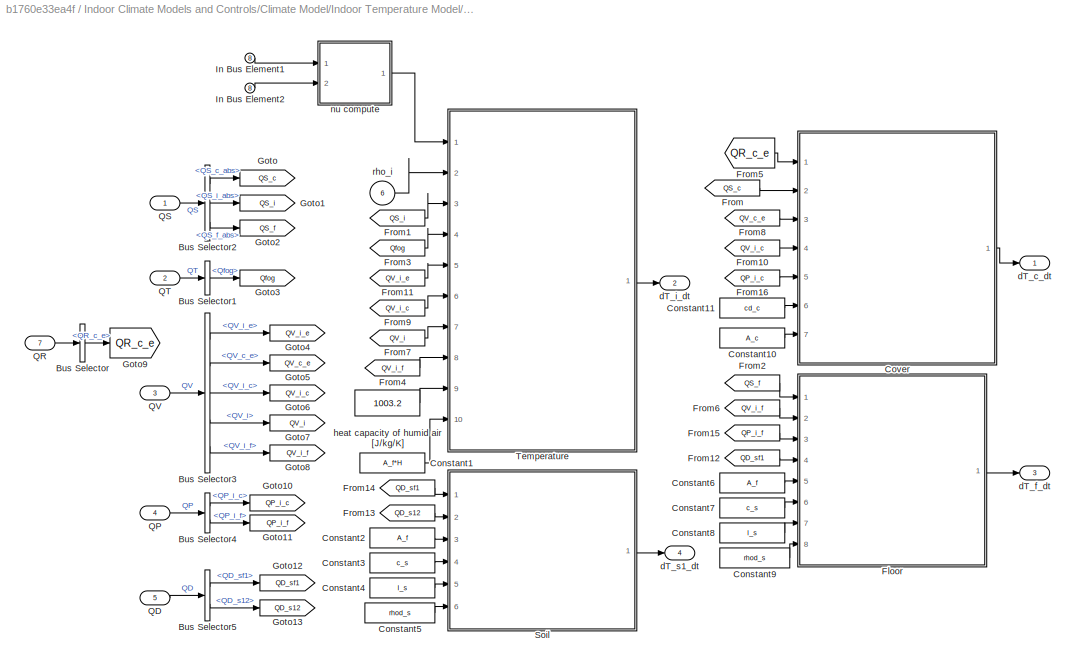
BLOCK [SubSystem] Indoor Climate Models and Controls/Climate Model/Indoor Temperature Model/Heat Balance
  PortSchema = {"entries":[{"content":{"sides":[{"content":{"connectorIds":["In1","In2","In3","In4","In5"]},"type":"ConnectorPlacement.EquallySpacedRectSide","uuid":"ccfbb954-e9e7-4841-9dc1-a760315eb250"},{"content":{"connectorIds":["Out1","Out2","Out3","Out4"],"side":"RIGHT"},"type":"ConnectorPlacement.EquallySpacedRectSide","uuid":"e9754eb2-54ce-43cf-bf33-7cf2f1345c42"},{"content":{"connectorIds":["In6"],"side...<+445ch>
  Ports = [8, 4]
  RequestExecContextInheritance = off
BLOCK [SubSystem] Indoor Climate Models and Controls/Climate Model/Indoor Temperature Model/Heat Balance/ Cover
  ErrorFcn = Stateflow.Translate.translate
  PermitHierarchicalResolution = ExplicitOnly
  Ports = [7, 1]
  RequestExecContextInheritance = off
  SFBlockType = MATLAB Function
  TreatAsAtomicUnit = on
BLOCK [Demux] Indoor Climate Models and Controls/Climate Model/Indoor Temperature Model/Heat Balance/ Cover/ Demux 
  Outputs = 1
  Ports = [1, 1]
BLOCK [S-Function] Indoor Climate Models and Controls/Climate Model/Indoor Temperature Model/Heat Balance/ Cover/ SFunction 
  EnableBusSupport = on
  FunctionName = sf_sfun
  PortCounts = [7 2]
  Ports = [7, 2]
  SFcnIsStateOwnerBlock = off
  SFunctionDeploymentMode = off
  Tag = Stateflow S-Function 1
BLOCK [Terminator] Indoor Climate Models and Controls/Climate Model/Indoor Temperature Model/Heat Balance/ Cover/ Terminator 
BLOCK [Inport] Indoor Climate Models and Controls/Climate Model/Indoor Temperature Model/Heat Balance/ Cover/A_c
  Port = 7
BLOCK [Inport] Indoor Climate Models and Controls/Climate Model/Indoor Temperature Model/Heat Balance/ Cover/QP_i_c
  Port = 5
BLOCK [Inport] Indoor Climate Models and Controls/Climate Model/Indoor Temperature Model/Heat Balance/ Cover/QR_c_e
BLOCK [Inport] Indoor Climate Models and Controls/Climate Model/Indoor Temperature Model/Heat Balance/ Cover/QS_c
  Port = 2
BLOCK [Inport] Indoor Climate Models and Controls/Climate Model/Indoor Temperature Model/Heat Balance/ Cover/QV_c_e
  Port = 3
BLOCK [Inport] Indoor Climate Models and Controls/Climate Model/Indoor Temperature Model/Heat Balance/ Cover/QV_i_c
  Port = 4
BLOCK [Inport] Indoor Climate Models and Controls/Climate Model/Indoor Temperature Model/Heat Balance/ Cover/cd_c
  Port = 6
BLOCK [Outport] Indoor Climate Models and Controls/Climate Model/Indoor Temperature Model/Heat Balance/ Cover/dT_c_dt
BLOCK [SubSystem] Indoor Climate Models and Controls/Climate Model/Indoor Temperature Model/Heat Balance/ Floor
  ErrorFcn = Stateflow.Translate.translate
  PermitHierarchicalResolution = ExplicitOnly
  Ports = [8, 1]
  RequestExecContextInheritance = off
  SFBlockType = MATLAB Function
  TreatAsAtomicUnit = on
BLOCK [Demux] Indoor Climate Models and Controls/Climate Model/Indoor Temperature Model/Heat Balance/ Floor/ Demux 
  Outputs = 1
  Ports = [1, 1]
BLOCK [S-Function] Indoor Climate Models and Controls/Climate Model/Indoor Temperature Model/Heat Balance/ Floor/ SFunction 
  EnableBusSupport = on
  FunctionName = sf_sfun
  PortCounts = [8 2]
  Ports = [8, 2]
  SFcnIsStateOwnerBlock = off
  SFunctionDeploymentMode = off
  Tag = Stateflow S-Function 3
BLOCK [Terminator] Indoor Climate Models and Controls/Climate Model/Indoor Temperature Model/Heat Balance/ Floor/ Terminator 
BLOCK [Inport] Indoor Climate Models and Controls/Climate Model/Indoor Temperature Model/Heat Balance/ Floor/A_f
  Port = 5
BLOCK [Inport] Indoor Climate Models and Controls/Climate Model/Indoor Temperature Model/Heat Balance/ Floor/QD_sf1
  Port = 4
BLOCK [Inport] Indoor Climate Models and Controls/Climate Model/Indoor Temperature Model/Heat Balance/ Floor/QP_i_f
  Port = 3
BLOCK [Inport] Indoor Climate Models and Controls/Climate Model/Indoor Temperature Model/Heat Balance/ Floor/QS_f
BLOCK [Inport] Indoor Climate Models and Controls/Climate Model/Indoor Temperature Model/Heat Balance/ Floor/QV_i_f
  Port = 2
BLOCK [Inport] Indoor Climate Models and Controls/Climate Model/Indoor Temperature Model/Heat Balance/ Floor/c_s
  Port = 6
BLOCK [Outport] Indoor Climate Models and Controls/Climate Model/Indoor Temperature Model/Heat Balance/ Floor/dT_f_dt
BLOCK [Inport] Indoor Climate Models and Controls/Climate Model/Indoor Temperature Model/Heat Balance/ Floor/l_s
  Port = 7
BLOCK [Inport] Indoor Climate Models and Controls/Climate Model/Indoor Temperature Model/Heat Balance/ Floor/rhod_s
  Port = 8
BLOCK [SubSystem] Indoor Climate Models and Controls/Climate Model/Indoor Temperature Model/Heat Balance/ Soil
  ErrorFcn = Stateflow.Translate.translate
  PermitHierarchicalResolution = ExplicitOnly
  Ports = [6, 1]
  RequestExecContextInheritance = off
  SFBlockType = MATLAB Function
  TreatAsAtomicUnit = on
BLOCK [Demux] Indoor Climate Models and Controls/Climate Model/Indoor Temperature Model/Heat Balance/ Soil/ Demux 
  Outputs = 1
  Ports = [1, 1]
BLOCK [S-Function] Indoor Climate Models and Controls/Climate Model/Indoor Temperature Model/Heat Balance/ Soil/ SFunction 
  EnableBusSupport = on
  FunctionName = sf_sfun
  PortCounts = [6 2]
  Ports = [6, 2]
  SFcnIsStateOwnerBlock = off
  SFunctionDeploymentMode = off
  Tag = Stateflow S-Function 10
BLOCK [Terminator] Indoor Climate Models and Controls/Climate Model/Indoor Temperature Model/Heat Balance/ Soil/ Terminator 
BLOCK [Inport] Indoor Climate Models and Controls/Climate Model/Indoor Temperature Model/Heat Balance/ Soil/A_f
  Port = 3
BLOCK [Inport] Indoor Climate Models and Controls/Climate Model/Indoor Temperature Model/Heat Balance/ Soil/QD_s12
  Port = 2
BLOCK [Inport] Indoor Climate Models and Controls/Climate Model/Indoor Temperature Model/Heat Balance/ Soil/QD_sf1
BLOCK [Inport] Indoor Climate Models and Controls/Climate Model/Indoor Temperature Model/Heat Balance/ Soil/c_s
  Port = 4
BLOCK [Outport] Indoor Climate Models and Controls/Climate Model/Indoor Temperature Model/Heat Balance/ Soil/dT_s1_dt
BLOCK [Inport] Indoor Climate Models and Controls/Climate Model/Indoor Temperature Model/Heat Balance/ Soil/l_s
  Port = 5
BLOCK [Inport] Indoor Climate Models and Controls/Climate Model/Indoor Temperature Model/Heat Balance/ Soil/rhod_s
  Port = 6
BLOCK [SubSystem] Indoor Climate Models and Controls/Climate Model/Indoor Temperature Model/Heat Balance/ Temperature
  ErrorFcn = Stateflow.Translate.translate
  PermitHierarchicalResolution = ExplicitOnly
  Ports = [10, 1]
  RequestExecContextInheritance = off
  SFBlockType = MATLAB Function
  TreatAsAtomicUnit = on
BLOCK [Demux] Indoor Climate Models and Controls/Climate Model/Indoor Temperature Model/Heat Balance/ Temperature/ Demux 
  Outputs = 1
  Ports = [1, 1]
BLOCK [S-Function] Indoor Climate Models and Controls/Climate Model/Indoor Temperature Model/Heat Balance/ Temperature/ SFunction 
  EnableBusSupport = on
  FunctionName = sf_sfun
  PortCounts = [10 2]
  Ports = [10, 2]
  SFcnIsStateOwnerBlock = off
  SFunctionDeploymentMode = off
  Tag = Stateflow S-Function 5
BLOCK [Terminator] Indoor Climate Models and Controls/Climate Model/Indoor Temperature Model/Heat Balance/ Temperature/ Terminator 
BLOCK [Inport] Indoor Climate Models and Controls/Climate Model/Indoor Temperature Model/Heat Balance/ Temperature/QS_i
  Port = 3
BLOCK [Inport] Indoor Climate Models and Controls/Climate Model/Indoor Temperature Model/Heat Balance/ Temperature/QT_fog
  Port = 4
BLOCK [Inport] Indoor Climate Models and Controls/Climate Model/Indoor Temperature Model/Heat Balance/ Temperature/QV_i
  Port = 7
BLOCK [Inport] Indoor Climate Models and Controls/Climate Model/Indoor Temperature Model/Heat Balance/ Temperature/QV_i_c
  Port = 6
BLOCK [Inport] Indoor Climate Models and Controls/Climate Model/Indoor Temperature Model/Heat Balance/ Temperature/QV_i_e
  Port = 5
BLOCK [Inport] Indoor Climate Models and Controls/Climate Model/Indoor Temperature Model/Heat Balance/ Temperature/QV_i_f
  Port = 8
BLOCK [Inport] Indoor Climate Models and Controls/Climate Model/Indoor Temperature Model/Heat Balance/ Temperature/V
  Port = 10
BLOCK [Inport] Indoor Climate Models and Controls/Climate Model/Indoor Temperature Model/Heat Balance/ Temperature/c_i
  Port = 9
BLOCK [Outport] Indoor Climate Models and Controls/Climate Model/Indoor Temperature Model/Heat Balance/ Temperature/dT_i_dt
BLOCK [Inport] Indoor Climate Models and Controls/Climate Model/Indoor Temperature Model/Heat Balance/ Temperature/nu
BLOCK [Inport] Indoor Climate Models and Controls/Climate Model/Indoor Temperature Model/Heat Balance/ Temperature/rho_i
  Port = 2
BLOCK [BusSelector] Indoor Climate Models and Controls/Climate Model/Indoor Temperature Model/Heat Balance/Bus Selector
  OutputSignals = QR_c_e
  Ports = [1, 1]
BLOCK [BusSelector] Indoor Climate Models and Controls/Climate Model/Indoor Temperature Model/Heat Balance/Bus Selector1
  OutputSignals = Qfog
  Ports = [1, 1]
BLOCK [BusSelector] Indoor Climate Models and Controls/Climate Model/Indoor Temperature Model/Heat Balance/Bus Selector2
  OutputSignals = QS_c_abs,QS_i_abs,QS_f_abs
  Ports = [1, 3]
BLOCK [BusSelector] Indoor Climate Models and Controls/Climate Model/Indoor Temperature Model/Heat Balance/Bus Selector3
  OutputSignals = QV_i_e,QV_c_e,QV_i_c,QV_i,QV_i_f
  Ports = [1, 5]
BLOCK [BusSelector] Indoor Climate Models and Controls/Climate Model/Indoor Temperature Model/Heat Balance/Bus Selector4
  OutputSignals = QP_i_c,QP_i_f
  Ports = [1, 2]
BLOCK [BusSelector] Indoor Climate Models and Controls/Climate Model/Indoor Temperature Model/Heat Balance/Bus Selector5
  OutputSignals = QD_sf1,QD_s12
  Ports = [1, 2]
BLOCK [Constant] Indoor Climate Models and Controls/Climate Model/Indoor Temperature Model/Heat Balance/Constant1
  Value = A_f*H
BLOCK [Constant] Indoor Climate Models and Controls/Climate Model/Indoor Temperature Model/Heat Balance/Constant10
  Value = A_c
BLOCK [Constant] Indoor Climate Models and Controls/Climate Model/Indoor Temperature Model/Heat Balance/Constant11
  Value = cd_c
BLOCK [Constant] Indoor Climate Models and Controls/Climate Model/Indoor Temperature Model/Heat Balance/Constant2
  Value = A_f
BLOCK [Constant] Indoor Climate Models and Controls/Climate Model/Indoor Temperature Model/Heat Balance/Constant3
  Value = c_s
BLOCK [Constant] Indoor Climate Models and Controls/Climate Model/Indoor Temperature Model/Heat Balance/Constant4
  Value = l_s
BLOCK [Constant] Indoor Climate Models and Controls/Climate Model/Indoor Temperature Model/Heat Balance/Constant5
  Value = rhod_s
BLOCK [Constant] Indoor Climate Models and Controls/Climate Model/Indoor Temperature Model/Heat Balance/Constant6
  Value = A_f
BLOCK [Constant] Indoor Climate Models and Controls/Climate Model/Indoor Temperature Model/Heat Balance/Constant7
  Value = c_s
BLOCK [Constant] Indoor Climate Models and Controls/Climate Model/Indoor Temperature Model/Heat Balance/Constant8
  Value = l_s
BLOCK [Constant] Indoor Climate Models and Controls/Climate Model/Indoor Temperature Model/Heat Balance/Constant9
  Value = rhod_s
BLOCK [From] Indoor Climate Models and Controls/Climate Model/Indoor Temperature Model/Heat Balance/From
  GotoTag = QS_c
BLOCK [From] Indoor Climate Models and Controls/Climate Model/Indoor Temperature Model/Heat Balance/From1
  GotoTag = QS_i
BLOCK [From] Indoor Climate Models and Controls/Climate Model/Indoor Temperature Model/Heat Balance/From10
  GotoTag = QV_i_c
BLOCK [From] Indoor Climate Models and Controls/Climate Model/Indoor Temperature Model/Heat Balance/From11
  GotoTag = QV_i_e
BLOCK [From] Indoor Climate Models and Controls/Climate Model/Indoor Temperature Model/Heat Balance/From12
  GotoTag = QD_sf1
BLOCK [From] Indoor Climate Models and Controls/Climate Model/Indoor Temperature Model/Heat Balance/From13
  GotoTag = QD_s12
BLOCK [From] Indoor Climate Models and Controls/Climate Model/Indoor Temperature Model/Heat Balance/From14
  GotoTag = QD_sf1
BLOCK [From] Indoor Climate Models and Controls/Climate Model/Indoor Temperature Model/Heat Balance/From15
  GotoTag = QP_i_f
BLOCK [From] Indoor Climate Models and Controls/Climate Model/Indoor Temperature Model/Heat Balance/From16
  GotoTag = QP_i_c
BLOCK [From] Indoor Climate Models and Controls/Climate Model/Indoor Temperature Model/Heat Balance/From2
  GotoTag = QS_f
BLOCK [From] Indoor Climate Models and Controls/Climate Model/Indoor Temperature Model/Heat Balance/From3
  GotoTag = Qfog
BLOCK [From] Indoor Climate Models and Controls/Climate Model/Indoor Temperature Model/Heat Balance/From4
  GotoTag = QV_i_f
BLOCK [From] Indoor Climate Models and Controls/Climate Model/Indoor Temperature Model/Heat Balance/From5
  GotoTag = QR_c_e
BLOCK [From] Indoor Climate Models and Controls/Climate Model/Indoor Temperature Model/Heat Balance/From6
  GotoTag = QV_i_f
BLOCK [From] Indoor Climate Models and Controls/Climate Model/Indoor Temperature Model/Heat Balance/From7
  GotoTag = QV_i
BLOCK [From] Indoor Climate Models and Controls/Climate Model/Indoor Temperature Model/Heat Balance/From8
  GotoTag = QV_c_e
BLOCK [From] Indoor Climate Models and Controls/Climate Model/Indoor Temperature Model/Heat Balance/From9
  GotoTag = QV_i_c
BLOCK [Goto] Indoor Climate Models and Controls/Climate Model/Indoor Temperature Model/Heat Balance/Goto
  GotoTag = QS_c
BLOCK [Goto] Indoor Climate Models and Controls/Climate Model/Indoor Temperature Model/Heat Balance/Goto1
  GotoTag = QS_i
BLOCK [Goto] Indoor Climate Models and Controls/Climate Model/Indoor Temperature Model/Heat Balance/Goto10
  GotoTag = QP_i_c
BLOCK [Goto] Indoor Climate Models and Controls/Climate Model/Indoor Temperature Model/Heat Balance/Goto11
  GotoTag = QP_i_f
BLOCK [Goto] Indoor Climate Models and Controls/Climate Model/Indoor Temperature Model/Heat Balance/Goto12
  GotoTag = QD_sf1
BLOCK [Goto] Indoor Climate Models and Controls/Climate Model/Indoor Temperature Model/Heat Balance/Goto13
  GotoTag = QD_s12
BLOCK [Goto] Indoor Climate Models and Controls/Climate Model/Indoor Temperature Model/Heat Balance/Goto2
  GotoTag = QS_f
BLOCK [Goto] Indoor Climate Models and Controls/Climate Model/Indoor Temperature Model/Heat Balance/Goto3
  GotoTag = Qfog
BLOCK [Goto] Indoor Climate Models and Controls/Climate Model/Indoor Temperature Model/Heat Balance/Goto4
  GotoTag = QV_i_e
BLOCK [Goto] Indoor Climate Models and Controls/Climate Model/Indoor Temperature Model/Heat Balance/Goto5
  GotoTag = QV_c_e
BLOCK [Goto] Indoor Climate Models and Controls/Climate Model/Indoor Temperature Model/Heat Balance/Goto6
  GotoTag = QV_i_c
BLOCK [Goto] Indoor Climate Models and Controls/Climate Model/Indoor Temperature Model/Heat Balance/Goto7
  GotoTag = QV_i
BLOCK [Goto] Indoor Climate Models and Controls/Climate Model/Indoor Temperature Model/Heat Balance/Goto8
  GotoTag = QV_i_f
BLOCK [Goto] Indoor Climate Models and Controls/Climate Model/Indoor Temperature Model/Heat Balance/Goto9
  GotoTag = QR_c_e
BLOCK [Inport] Indoor Climate Models and Controls/Climate Model/Indoor Temperature Model/Heat Balance/In Bus Element1
  Port = 8
BLOCK [Inport] Indoor Climate Models and Controls/Climate Model/Indoor Temperature Model/Heat Balance/In Bus Element2
  Port = 8
BLOCK [Inport] Indoor Climate Models and Controls/Climate Model/Indoor Temperature Model/Heat Balance/QD
  Port = 5
BLOCK [Inport] Indoor Climate Models and Controls/Climate Model/Indoor Temperature Model/Heat Balance/QP
  Port = 4
BLOCK [Inport] Indoor Climate Models and Controls/Climate Model/Indoor Temperature Model/Heat Balance/QR
  Port = 7
BLOCK [Inport] Indoor Climate Models and Controls/Climate Model/Indoor Temperature Model/Heat Balance/QS
BLOCK [Inport] Indoor Climate Models and Controls/Climate Model/Indoor Temperature Model/Heat Balance/QT
  Port = 2
BLOCK [Inport] Indoor Climate Models and Controls/Climate Model/Indoor Temperature Model/Heat Balance/QV
  Port = 3
BLOCK [Outport] Indoor Climate Models and Controls/Climate Model/Indoor Temperature Model/Heat Balance/dT_c_dt
BLOCK [Outport] Indoor Climate Models and Controls/Climate Model/Indoor Temperature Model/Heat Balance/dT_f_dt
  Port = 3
BLOCK [Outport] Indoor Climate Models and Controls/Climate Model/Indoor Temperature Model/Heat Balance/dT_i_dt
  Port = 2
BLOCK [Outport] Indoor Climate Models and Controls/Climate Model/Indoor Temperature Model/Heat Balance/dT_s1_dt
  Port = 4
BLOCK [Constant] Indoor Climate Models and Controls/Climate Model/Indoor Temperature Model/Heat Balance/heat capacity of humid air [J//kg//K] 
  Value = 1003.2
BLOCK [SubSystem] Indoor Climate Models and Controls/Climate Model/Indoor Temperature Model/Heat Balance/nu compute
  Ports = [2, 1]
  RequestExecContextInheritance = off
BLOCK [Constant] Indoor Climate Models and Controls/Climate Model/Indoor Temperature Model/Heat Balance/nu compute/Constant
BLOCK [Gain] Indoor Climate Models and Controls/Climate Model/Indoor Temperature Model/Heat Balance/nu compute/Gain
  Gain = 1/100
BLOCK [Inport] Indoor Climate Models and Controls/Climate Model/Indoor Temperature Model/Heat Balance/nu compute/In1
BLOCK [Inport] Indoor Climate Models and Controls/Climate Model/Indoor Temperature Model/Heat Balance/nu compute/In2
  Port = 2
BLOCK [Outport] Indoor Climate Models and Controls/Climate Model/Indoor Temperature Model/Heat Balance/nu compute/Out1
BLOCK [Product] Indoor Climate Models and Controls/Climate Model/Indoor Temperature Model/Heat Balance/nu compute/Product
  Ports = [2, 1]
BLOCK [Scope] Indoor Climate Models and Controls/Climate Model/Indoor Temperature Model/Heat Balance/nu compute/Scope
  Floating = off
  NumInputPorts = 1
  Ports = [1]
  ScopeSpecificationString = Simulink.scopes.TimeScopeBlockCfg('CurrentConfiguration', extmgr.ConfigurationSet(extmgr.Configuration('Core','General UI',true),extmgr.Configuration('Core','Source UI',true),extmgr.Configuration('Sources','WiredSimulink',true),extmgr.Configuration('Visuals','Time Domain',true,'SerializedDisplays',{struct('MinYLimReal','-55.25','MaxYLimReal','507.25','YLabelReal','','MinYLimMag','0.00000','MaxYLim...<+1370ch>
BLOCK [Sum] Indoor Climate Models and Controls/Climate Model/Indoor Temperature Model/Heat Balance/nu compute/Sum
  Inputs = |++
  Ports = [2, 1]
BLOCK [Inport] Indoor Climate Models and Controls/Climate Model/Indoor Temperature Model/Heat Balance/rho_i
  Port = 6
BLOCK [Inport] Indoor Climate Models and Controls/Climate Model/Indoor Temperature Model/In Bus Element
  NameLocation = left
  Port = 3
BLOCK [Inport] Indoor Climate Models and Controls/Climate Model/Indoor Temperature Model/In Bus Element1
  Port = 3
BLOCK [Inport] Indoor Climate Models and Controls/Climate Model/Indoor Temperature Model/In Bus Element10
  NameLocation = left
  Port = 6
BLOCK [Inport] Indoor Climate Models and Controls/Climate Model/Indoor Temperature Model/In Bus Element11
  NameLocation = left
  Port = 6
BLOCK [Inport] Indoor Climate Models and Controls/Climate Model/Indoor Temperature Model/In Bus Element2
  Port = 2
BLOCK [Inport] Indoor Climate Models and Controls/Climate Model/Indoor Temperature Model/In Bus Element3
  NameLocation = left
  Port = 6
BLOCK [Inport] Indoor Climate Models and Controls/Climate Model/Indoor Temperature Model/In Bus Element4
  Port = 2
BLOCK [Inport] Indoor Climate Models and Controls/Climate Model/Indoor Temperature Model/In Bus Element5
  Port = 2
BLOCK [Inport] Indoor Climate Models and Controls/Climate Model/Indoor Temperature Model/In Bus Element6
  NameLocation = left
  Port = 6
BLOCK [Inport] Indoor Climate Models and Controls/Climate Model/Indoor Temperature Model/In Bus Element7
  NameLocation = left
  Port = 6
BLOCK [Inport] Indoor Climate Models and Controls/Climate Model/Indoor Temperature Model/In Bus Element8
  Port = 2
BLOCK [Inport] Indoor Climate Models and Controls/Climate Model/Indoor Temperature Model/In Bus Element9
  Port = 3
BLOCK [Outport] Indoor Climate Models and Controls/Climate Model/Indoor Temperature Model/Indoor Climate
BLOCK [Integrator] Indoor Climate Models and Controls/Climate Model/Indoor Temperature Model/Integrator
  AbsoluteTolerance = 0.01
  InitialCondition = T0
  Ports = [1, 1]
BLOCK [Gain] Indoor Climate Models and Controls/Climate Model/Indoor Temperature Model/Mass2Heat
  Gain = 2437000
BLOCK [SubSystem] Indoor Climate Models and Controls/Climate Model/Indoor Temperature Model/Radiation Model
  PortSchema = {"entries":[{"content":{"sides":[{"content":{"connectorIds":["In1","In2"]},"type":"ConnectorPlacement.EquallySpacedRectSide","uuid":"cb5a2538-07d5-409a-bc47-ac7157db0ef4"},{"content":{"connectorIds":["Out1"],"side":"RIGHT"},"type":"ConnectorPlacement.EquallySpacedRectSide","uuid":"7dfe2e6f-8ee6-45c0-8502-080571e1b483"},{"content":{"connectorIds":["In3"],"side":"TOP"},"type":"ConnectorPlacement.Equ...<+251ch>
  Ports = [3, 1]
  RequestExecContextInheritance = off
BLOCK [SubSystem] Indoor Climate Models and Controls/Climate Model/Indoor Temperature Model/Radiation Model/1-\alpha
  PortSchema = {"entries":[{"content":{"sides":[{"content":{"connectorIds":[]},"type":"ConnectorPlacement.EquallySpacedRectSide","uuid":"bf116baa-1c91-42ba-b5ce-6949a5122443"},{"content":{"connectorIds":["Out1"],"side":"RIGHT"},"type":"ConnectorPlacement.EquallySpacedRectSide","uuid":"479b2a41-aae8-4d0f-95ce-40d0c52850dd"},{"content":{"connectorIds":["In1"],"side":"TOP"},"type":"ConnectorPlacement.EquallySpacedR...<+240ch>
  Ports = [1, 1]
  RequestExecContextInheritance = off
BLOCK [Constant] Indoor Climate Models and Controls/Climate Model/Indoor Temperature Model/Radiation Model/1-\alpha/Constant6
BLOCK [Inport] Indoor Climate Models and Controls/Climate Model/Indoor Temperature Model/Radiation Model/1-\alpha/In1
BLOCK [Sum] Indoor Climate Models and Controls/Climate Model/Indoor Temperature Model/Radiation Model/1-\alpha/Minus
  IconShape = rectangular
  Inputs = +-
  Ports = [2, 1]
BLOCK [Outport] Indoor Climate Models and Controls/Climate Model/Indoor Temperature Model/Radiation Model/1-\alpha/Out1
BLOCK [Inport] Indoor Climate Models and Controls/Climate Model/Indoor Temperature Model/Radiation Model/Area
  Port = 3
BLOCK [BusCreator] Indoor Climate Models and Controls/Climate Model/Indoor Temperature Model/Radiation Model/Bus Creator
  DisplayOption = bar
  InheritFromInputs = on
  Inputs = 5
  Ports = [5, 1]
BLOCK [Constant] Indoor Climate Models and Controls/Climate Model/Indoor Temperature Model/Radiation Model/Constant
  Value = alpha_f
BLOCK [Constant] Indoor Climate Models and Controls/Climate Model/Indoor Temperature Model/Radiation Model/Constant1
  Value = alpha_c
BLOCK [Constant] Indoor Climate Models and Controls/Climate Model/Indoor Temperature Model/Radiation Model/Constant2
  Value = tau_c
BLOCK [Constant] Indoor Climate Models and Controls/Climate Model/Indoor Temperature Model/Radiation Model/Constant3
  Value = alpha_i
BLOCK [Constant] Indoor Climate Models and Controls/Climate Model/Indoor Temperature Model/Radiation Model/Constant4
  Value = A_f
BLOCK [Constant] Indoor Climate Models and Controls/Climate Model/Indoor Temperature Model/Radiation Model/Constant5
  Value = A_f
BLOCK [Constant] Indoor Climate Models and Controls/Climate Model/Indoor Temperature Model/Radiation Model/Constant7
  Value = A_f
BLOCK [Product] Indoor Climate Models and Controls/Climate Model/Indoor Temperature Model/Radiation Model/Divide
  Inputs = */
  Ports = [2, 1]
BLOCK [Inport] Indoor Climate Models and Controls/Climate Model/Indoor Temperature Model/Radiation Model/Exterior Radiation
  Port = 2
BLOCK [From] Indoor Climate Models and Controls/Climate Model/Indoor Temperature Model/Radiation Model/From
  GotoTag = QS_f
BLOCK [From] Indoor Climate Models and Controls/Climate Model/Indoor Temperature Model/Radiation Model/From1
  GotoTag = QS_i
BLOCK [From] Indoor Climate Models and Controls/Climate Model/Indoor Temperature Model/Radiation Model/From2
  GotoTag = QS_c
BLOCK [From] Indoor Climate Models and Controls/Climate Model/Indoor Temperature Model/Radiation Model/From3
  GotoTag = R_i
BLOCK [From] Indoor Climate Models and Controls/Climate Model/Indoor Temperature Model/Radiation Model/From4
  GotoTag = QS_tot
BLOCK [Goto] Indoor Climate Models and Controls/Climate Model/Indoor Temperature Model/Radiation Model/Goto
  GotoTag = QS_c
BLOCK [Goto] Indoor Climate Models and Controls/Climate Model/Indoor Temperature Model/Radiation Model/Goto1
  GotoTag = QS_i
BLOCK [Goto] Indoor Climate Models and Controls/Climate Model/Indoor Temperature Model/Radiation Model/Goto2
  GotoTag = QS_f
BLOCK [Goto] Indoor Climate Models and Controls/Climate Model/Indoor Temperature Model/Radiation Model/Goto3
  GotoTag = R_i
BLOCK [Goto] Indoor Climate Models and Controls/Climate Model/Indoor Temperature Model/Radiation Model/Goto4
  GotoTag = QS_tot
BLOCK [Inport] Indoor Climate Models and Controls/Climate Model/Indoor Temperature Model/Radiation Model/In Bus Element
BLOCK [Inport] Indoor Climate Models and Controls/Climate Model/Indoor Temperature Model/Radiation Model/In Bus Element1
BLOCK [Product] Indoor Climate Models and Controls/Climate Model/Indoor Temperature Model/Radiation Model/Product
  Ports = [2, 1]
BLOCK [Product] Indoor Climate Models and Controls/Climate Model/Indoor Temperature Model/Radiation Model/Product1
  Ports = [2, 1]
BLOCK [Product] Indoor Climate Models and Controls/Climate Model/Indoor Temperature Model/Radiation Model/Product2
  Ports = [2, 1]
BLOCK [Product] Indoor Climate Models and Controls/Climate Model/Indoor Temperature Model/Radiation Model/Product3
  Ports = [2, 1]
BLOCK [Product] Indoor Climate Models and Controls/Climate Model/Indoor Temperature Model/Radiation Model/Product4
  Ports = [2, 1]
BLOCK [Product] Indoor Climate Models and Controls/Climate Model/Indoor Temperature Model/Radiation Model/Product5
  Ports = [2, 1]
BLOCK [Outport] Indoor Climate Models and Controls/Climate Model/Indoor Temperature Model/Radiation Model/Solar Energy  
BLOCK [SubSystem] Indoor Climate Models and Controls/Climate Model/Indoor Temperature Model/Radiation Model/Subsystem
  Ports = [4, 1]
  RequestExecContextInheritance = off
BLOCK [Inport] Indoor Climate Models and Controls/Climate Model/Indoor Temperature Model/Radiation Model/Subsystem/A_f
BLOCK [Product] Indoor Climate Models and Controls/Climate Model/Indoor Temperature Model/Radiation Model/Subsystem/Divide
  Inputs = */**
  Ports = [4, 1]
BLOCK [Inport] Indoor Climate Models and Controls/Climate Model/Indoor Temperature Model/Radiation Model/Subsystem/In2
  Port = 2
BLOCK [Sum] Indoor Climate Models and Controls/Climate Model/Indoor Temperature Model/Radiation Model/Subsystem/Minus
  IconShape = rectangular
  Inputs = +-
  Ports = [2, 1]
BLOCK [Outport] Indoor Climate Models and Controls/Climate Model/Indoor Temperature Model/Radiation Model/Subsystem/Out1
BLOCK [Inport] Indoor Climate Models and Controls/Climate Model/Indoor Temperature Model/Radiation Model/Subsystem/QS_i_tr
  Port = 4
BLOCK [Inport] Indoor Climate Models and Controls/Climate Model/Indoor Temperature Model/Radiation Model/Subsystem/alpha_f
  Port = 3
BLOCK [SubSystem] Indoor Climate Models and Controls/Climate Model/Indoor Temperature Model/Radiation Model/tau_screen
  Ports = [2, 1]
  RequestExecContextInheritance = off
BLOCK [Constant] Indoor Climate Models and Controls/Climate Model/Indoor Temperature Model/Radiation Model/tau_screen/Constant3
BLOCK [Product] Indoor Climate Models and Controls/Climate Model/Indoor Temperature Model/Radiation Model/tau_screen/Divide
  Inputs = **
  Ports = [2, 1]
BLOCK [Gain] Indoor Climate Models and Controls/Climate Model/Indoor Temperature Model/Radiation Model/tau_screen/Gain
  Gain = 1/100
BLOCK [Sum] Indoor Climate Models and Controls/Climate Model/Indoor Temperature Model/Radiation Model/tau_screen/Minus
  IconShape = rectangular
  Inputs = +-
  Ports = [2, 1]
BLOCK [Outport] Indoor Climate Models and Controls/Climate Model/Indoor Temperature Model/Radiation Model/tau_screen/Out1
BLOCK [Inport] Indoor Climate Models and Controls/Climate Model/Indoor Temperature Model/Radiation Model/tau_screen/gamma
BLOCK [Inport] Indoor Climate Models and Controls/Climate Model/Indoor Temperature Model/Radiation Model/tau_screen/screen
  Port = 2
BLOCK [Inport] Indoor Climate Models and Controls/Climate Model/Indoor Temperature Model/Screen
  NameLocation = top
  Port = 5
BLOCK [Gain] Indoor Climate Models and Controls/Climate Model/Indoor Temperature Model/Sec2Days
  Gain = 24*3600
BLOCK [Outport] Indoor Climate Models and Controls/Climate Model/Indoor Temperature Model/Solar Energy
  Port = 5
BLOCK [SubSystem] Indoor Climate Models and Controls/Climate Model/Indoor Temperature Model/Subsystem
  Ports = [2, 1]
  RequestExecContextInheritance = off
BLOCK [Constant] Indoor Climate Models and Controls/Climate Model/Indoor Temperature Model/Subsystem/ Stefan-Boltzmann constant [W//m^2//K^4] 
  Value = 5.67e-8
BLOCK [BusCreator] Indoor Climate Models and Controls/Climate Model/Indoor Temperature Model/Subsystem/Bus Creator
  DisplayOption = bar
  InheritFromInputs = on
  Inputs = 1
  Ports = [1, 1]
BLOCK [Constant] Indoor Climate Models and Controls/Climate Model/Indoor Temperature Model/Subsystem/Constant
  Value = 4
BLOCK [Constant] Indoor Climate Models and Controls/Climate Model/Indoor Temperature Model/Subsystem/Constant1
  Value = 4
BLOCK [Constant] Indoor Climate Models and Controls/Climate Model/Indoor Temperature Model/Subsystem/Constant2
  Value = A_c
BLOCK [Sum] Indoor Climate Models and Controls/Climate Model/Indoor Temperature Model/Subsystem/Minus
  IconShape = rectangular
  Inputs = +-
  Ports = [2, 1]
BLOCK [Product] Indoor Climate Models and Controls/Climate Model/Indoor Temperature Model/Subsystem/Product
  Inputs = 4
  Ports = [4, 1]
BLOCK [Outport] Indoor Climate Models and Controls/Climate Model/Indoor Temperature Model/Subsystem/QR
BLOCK [Math] Indoor Climate Models and Controls/Climate Model/Indoor Temperature Model/Subsystem/Square
  Operator = pow
  Ports = [2, 1]
BLOCK [Math] Indoor Climate Models and Controls/Climate Model/Indoor Temperature Model/Subsystem/Square1
  Operator = pow
  Ports = [2, 1]
BLOCK [Inport] Indoor Climate Models and Controls/Climate Model/Indoor Temperature Model/Subsystem/Tc
BLOCK [Inport] Indoor Climate Models and Controls/Climate Model/Indoor Temperature Model/Subsystem/Te
  Port = 2
BLOCK [Constant] Indoor Climate Models and Controls/Climate Model/Indoor Temperature Model/Subsystem/k
  Value = 0.985
BLOCK [Outport] Indoor Climate Models and Controls/Climate Model/Indoor Temperature Model/Transpiration Heat
  NameLocation = left
  Port = 2
BLOCK [Concatenate] Indoor Climate Models and Controls/Climate Model/Indoor Temperature Model/Vector Concatenate
  NumInputs = 4
  Ports = [4, 1]
BLOCK [Outport] Indoor Climate Models and Controls/Climate Model/Indoor Temperature Model/Ventilation Rate
  Port = 3
BLOCK [Inport] Indoor Climate Models and Controls/Climate Model/Indoor Temperature Model/Windows
BLOCK [Outport] Indoor Climate Models and Controls/Climate Model/Out Bus Element
BLOCK [Outport] Indoor Climate Models and Controls/Climate Model/Out Bus Element1
BLOCK [Outport] Indoor Climate Models and Controls/Climate Model/Out Bus Element2
BLOCK [Outport] Indoor Climate Models and Controls/Climate Model/Out Bus Element3
BLOCK [SubSystem] Indoor Climate Models and Controls/Climate Model/Subsystem
  NameLocation = left
  PortSchema = {"entries":[{"content":{"sides":[{"content":{"connectorIds":[]},"type":"ConnectorPlacement.EquallySpacedRectSide","uuid":"35868875-f783-4ad4-af7a-8ba6d23e35d0"},{"content":{"connectorIds":["Out1"],"side":"RIGHT"},"type":"ConnectorPlacement.EquallySpacedRectSide","uuid":"2025d12d-e021-4399-bfe6-d7037c727539"},{"content":{"connectorIds":[],"side":"TOP"},"type":"ConnectorPlacement.EquallySpacedRectSi...<+384ch>
  Ports = [1, 1]
  RequestExecContextInheritance = off
BLOCK [BusCreator] Indoor Climate Models and Controls/Climate Model/Subsystem/Bus Creator3
  DisplayOption = bar
  InheritFromInputs = on
  Inputs = 4
  NameLocation = left
  Ports = [4, 1]
BLOCK [BusSelector] Indoor Climate Models and Controls/Climate Model/Subsystem/Bus Selector
  NameLocation = left
  OutputSignals = C_w,rho_i,C_w_sat_T_c,C_w_sat_T_f
  Ports = [1, 4]
BLOCK [Inport] Indoor Climate Models and Controls/Climate Model/Subsystem/Gas
BLOCK [Outport] Indoor Climate Models and Controls/Climate Model/Subsystem/Out1
BLOCK [Outport] Indoor Climate Models and Controls/CoCl1
  Port = 2
BLOCK [SubSystem] Indoor Climate Models and Controls/Control System
  NameLocation = top
  PortSchema = {"entries":[{"content":{"sides":[{"content":{"connectorIds":["In1","In2"]},"type":"ConnectorPlacement.EquallySpacedRectSide","uuid":"7d0146e2-a53b-49ab-a7f4-04cd7ef00b9a"},{"content":{"connectorIds":["Out1","Out2"],"side":"RIGHT"},"type":"ConnectorPlacement.EquallySpacedRectSide","uuid":"fee587e2-4b5c-4140-8904-07609d427593"},{"content":{"connectorIds":[],"side":"TOP"},"type":"ConnectorPlacement.E...<+402ch>
  Ports = [3, 2]
  RequestExecContextInheritance = off
BLOCK [BusSelector] Indoor Climate Models and Controls/Control System/Bus Selector
  NameLocation = right
  OutputSignals = HeatVars.QV,HeatVars.QT,A_v,CC
  Ports = [1, 4]
BLOCK [Outport] Indoor Climate Models and Controls/Control System/CoCl1
  Port = 2
BLOCK [Constant] Indoor Climate Models and Controls/Control System/Constant
  Value = Tmax
BLOCK [Constant] Indoor Climate Models and Controls/Control System/Constant1
  Value = Tstart
BLOCK [Constant] Indoor Climate Models and Controls/Control System/Constant2
  Value = 100
BLOCK [Constant] Indoor Climate Models and Controls/Control System/Constant3
  Value = 80
BLOCK [Constant] Indoor Climate Models and Controls/Control System/Constant4
  Value = 18
BLOCK [Constant] Indoor Climate Models and Controls/Control System/Constant5
  Value = 21
BLOCK [Inport] Indoor Climate Models and Controls/Control System/Crop
  NameLocation = right
  Port = 2
BLOCK [Inport] Indoor Climate Models and Controls/Control System/EC
  Port = 3
BLOCK [Outport] Indoor Climate Models and Controls/Control System/Ext
BLOCK [Reference] Indoor Climate Models and Controls/Control System/Heating Controler  REF=HORTISIM/Climate/Controls/Heating Controler
  NameLocation = top
  Ports = [4, 3]
  SourceBlock = HORTISIM/Climate/Controls/Heating Controler
  SourceProductName = Horti Simulator
BLOCK [Inport] Indoor Climate Models and Controls/Control System/IC
BLOCK [SubSystem] Indoor Climate Models and Controls/Control System/Scalar2Bus 
  Ports = [4, 1]
  RequestExecContextInheritance = off
BLOCK [Inport] Indoor Climate Models and Controls/Control System/Scalar2Bus /A
  Port = 3
BLOCK [BusCreator] Indoor Climate Models and Controls/Control System/Scalar2Bus /Bus Creator
  DisplayOption = bar
  InheritFromInputs = on
  Inputs = 4
  Ports = [4, 1]
BLOCK [Inport] Indoor Climate Models and Controls/Control System/Scalar2Bus /CC
  Port = 4
BLOCK [Outport] Indoor Climate Models and Controls/Control System/Scalar2Bus /CoCl
BLOCK [Inport] Indoor Climate Models and Controls/Control System/Scalar2Bus /QT
  Port = 2
BLOCK [Inport] Indoor Climate Models and Controls/Control System/Scalar2Bus /QV
BLOCK [Reference] Indoor Climate Models and Controls/Control System/Scalar2Bus Control Climate1  REF=HORTISIM/Other 
Functions/Scalar2Bus 
Control Climate
  Ports = [4, 1]
  SourceBlock = HORTISIM/Other \nFunctions/Scalar2Bus \nControl Climate
  SourceProductName = Horti Simulator
  SourceType = SubSystem
BLOCK [Reference] Indoor Climate Models and Controls/Control System/Screen Controler  REF=HORTISIM/Climate/Controls/Screen Controler
  NameLocation = top
  Ports = [1, 2]
  SourceBlock = HORTISIM/Climate/Controls/Screen Controler
  SourceProductName = Horti Simulator
BLOCK [Sum] Indoor Climate Models and Controls/Control System/Sum
  Inputs = |++
  Ports = [2, 1]
BLOCK [Reference] Indoor Climate Models and Controls/Control System/Windows Controler  REF=HORTISIM/Climate/Controls/Windows Controler
  NameLocation = top
  Ports = [5, 2]
  SourceBlock = HORTISIM/Climate/Controls/Windows Controler
  SourceProductName = Horti Simulator
BLOCK [Inport] Indoor Climate Models and Controls/Crop
  Port = 2
BLOCK [Inport] Indoor Climate Models and Controls/EC
BLOCK [Outport] Indoor Climate Models and Controls/Indoor Climate
BLOCK [Reference] Prune Policy  REF=HORTISIM/Horticulture/Controls/Prune
Policy
  Ports = [1, 1]
  SourceBlock = HORTISIM/Horticulture/Controls/Prune\nPolicy
  SourceProductName = Horti Simulator
BLOCK [Outport] S01-Crop
BLOCK [Outport] S02-Climate
  Port = 2
BLOCK [Outport] S03-Subs
  Port = 3
BLOCK [Reference] Scalar2Bus Control Crop  REF=HORTISIM/Other 
Functions/Scalar2Bus
Control Crop
  Ports = [3, 1]
  SourceBlock = HORTISIM/Other \nFunctions/Scalar2Bus\nControl Crop
  SourceProductName = Horti Simulator
  SourceType = SubSystem
BLOCK [Scope] Scope
  Floating = off
  NumInputPorts = 1
  Ports = [1]
  ScopeSpecificationString = Simulink.scopes.TimeScopeBlockCfg('CurrentConfiguration', extmgr.ConfigurationSet(extmgr.Configuration('Core','General UI',true),extmgr.Configuration('Core','Source UI',true),extmgr.Configuration('Sources','WiredSimulink',true),extmgr.Configuration('Visuals','Time Domain',true,'SerializedDisplays',{struct('MinYLimReal','-278148.99256','MaxYLimReal','1114634.8159','YLabelReal','','MinYLimMag','    ...<+1875ch>
BLOCK [Reference] Substrate Bag  REF=HORTISIM/Horticulture/Models/Substrate Bag
  Ports = [2, 1]
  SourceBlock = HORTISIM/Horticulture/Models/Substrate Bag
  SourceProductName = Horti Simulator
NET Crop Grow:1 -> Fruit Partitioning:1, Goto:1
LINE EC:1 -> Exterior Climate:1
LINE Exterior Climate/Demux:1 -> Exterior Climate/Scalar2Bus Exterior Climate:1
LINE Exterior Climate/Demux:2 -> Exterior Climate/Scalar2Bus Exterior Climate:2
LINE Exterior Climate/Demux:3 -> Exterior Climate/Scalar2Bus Exterior Climate:3
LINE Exterior Climate/Demux:4 -> Exterior Climate/Scalar2Bus Exterior Climate:4
LINE Exterior Climate/In1:1 -> Exterior Climate/Demux:1
LINE Exterior Climate/Scalar2Bus Exterior Climate/Bus Creator:1 -> Exterior Climate/Scalar2Bus Exterior Climate/EC:1
LINE Exterior Climate/Scalar2Bus Exterior Climate/Humidity:1 -> Exterior Climate/Scalar2Bus Exterior Climate/Bus Creator:3
LINE Exterior Climate/Scalar2Bus Exterior Climate/Radiation:1 -> Exterior Climate/Scalar2Bus Exterior Climate/Bus Creator:2
LINE Exterior Climate/Scalar2Bus Exterior Climate/Temperature:1 -> Exterior Climate/Scalar2Bus Exterior Climate/Bus Creator:1
LINE Exterior Climate/Scalar2Bus Exterior Climate/Wind:1 -> Exterior Climate/Scalar2Bus Exterior Climate/Bus Creator:4
LINE Exterior Climate/Scalar2Bus Exterior Climate:1 -> Exterior Climate/EC:1
LINE Exterior Climate:1 -> Indoor Climate Models and Controls:1
LINE Ferrtirrigation Controler:1 -> Substrate Bag:2
LINE From1:1 -> Substrate Bag:1
LINE From2:1 -> Crop Grow:3
LINE From3:1 -> Indoor Climate Models and Controls:2
NET From4:1 -> S01-Crop:1, Scope:1
LINE From5:1 -> S02-Climate:1
LINE From:1 -> Prune Policy:1
NET Indoor Climate Models and Controls/Climate Model:1 -> Indoor Climate Models and Controls/Control System:1, Indoor Climate Models and Controls/Indoor Climate:1
LINE Indoor Climate Models and Controls/Control System/Bus Selector:1 -> Indoor Climate Models and Controls/Control System/Sum:2
LINE Indoor Climate Models and Controls/Control System/Bus Selector:2 -> Indoor Climate Models and Controls/Control System/Scalar2Bus :2
LINE Indoor Climate Models and Controls/Control System/Bus Selector:3 -> Indoor Climate Models and Controls/Control System/Scalar2Bus :3
LINE Indoor Climate Models and Controls/Control System/Bus Selector:4 -> Indoor Climate Models and Controls/Control System/Scalar2Bus :4
LINE Indoor Climate Models and Controls/Control System/Constant1:1 -> Indoor Climate Models and Controls/Control System/Heating Controler:2
LINE Indoor Climate Models and Controls/Control System/Constant2:1 -> Indoor Climate Models and Controls/Control System/Windows Controler:5
LINE Indoor Climate Models and Controls/Control System/Constant3:1 -> Indoor Climate Models and Controls/Control System/Windows Controler:4
LINE Indoor Climate Models and Controls/Control System/Constant4:1 -> Indoor Climate Models and Controls/Control System/Windows Controler:2
LINE Indoor Climate Models and Controls/Control System/Constant5:1 -> Indoor Climate Models and Controls/Control System/Windows Controler:3
LINE Indoor Climate Models and Controls/Control System/Constant:1 -> Indoor Climate Models and Controls/Control System/Heating Controler:1
LINE Indoor Climate Models and Controls/Control System/Crop:1 -> Indoor Climate Models and Controls/Control System/Bus Selector:1
NET Indoor Climate Models and Controls/Control System/EC:1 -> Indoor Climate Models and Controls/Control System/Heating Controler:3, Indoor Climate Models and Controls/Control System/Screen Controler:1
LINE Indoor Climate Models and Controls/Control System/Heating Controler:1 -> Indoor Climate Models and Controls/Control System/Sum:1
NET Indoor Climate Models and Controls/Control System/IC:1 -> Indoor Climate Models and Controls/Control System/Heating Controler:4, Indoor Climate Models and Controls/Control System/Windows Controler:1
LINE Indoor Climate Models and Controls/Control System/Scalar2Bus /A:1 -> Indoor Climate Models and Controls/Control System/Scalar2Bus /Bus Creator:3
LINE Indoor Climate Models and Controls/Control System/Scalar2Bus /Bus Creator:1 -> Indoor Climate Models and Controls/Control System/Scalar2Bus /CoCl:1
LINE Indoor Climate Models and Controls/Control System/Scalar2Bus /CC:1 -> Indoor Climate Models and Controls/Control System/Scalar2Bus /Bus Creator:4
LINE Indoor Climate Models and Controls/Control System/Scalar2Bus /QT:1 -> Indoor Climate Models and Controls/Control System/Scalar2Bus /Bus Creator:2
LINE Indoor Climate Models and Controls/Control System/Scalar2Bus /QV:1 -> Indoor Climate Models and Controls/Control System/Scalar2Bus /Bus Creator:1
LINE Indoor Climate Models and Controls/Control System/Scalar2Bus :1 -> Indoor Climate Models and Controls/Control System/Ext:1
LINE Indoor Climate Models and Controls/Control System/Scalar2Bus Control Climate1:1 -> Indoor Climate Models and Controls/Control System/CoCl1:1
LINE Indoor Climate Models and Controls/Control System/Screen Controler:1 -> Indoor Climate Models and Controls/Control System/Scalar2Bus Control Climate1:2
LINE Indoor Climate Models and Controls/Control System/Sum:1 -> Indoor Climate Models and Controls/Control System/Scalar2Bus :1
LINE Indoor Climate Models and Controls/Control System/Windows Controler:1 -> Indoor Climate Models and Controls/Control System/Scalar2Bus Control Climate1:1
LINE Indoor Climate Models and Controls/Control System:1 -> Indoor Climate Models and Controls/Climate Model:1
NET Indoor Climate Models and Controls/Control System:2 -> Indoor Climate Models and Controls/Climate Model:2, Indoor Climate Models and Controls/CoCl1:1
LINE Indoor Climate Models and Controls/Crop:1 -> Indoor Climate Models and Controls/Control System:2
NET Indoor Climate Models and Controls/EC:1 -> Indoor Climate Models and Controls/Climate Model:3, Indoor Climate Models and Controls/Control System:3
NET Indoor Climate Models and Controls:1 -> Crop Grow:1, Goto2:1
LINE Indoor Climate Models and Controls:2 -> CoCl1:1
LINE Prune Policy:1 -> Scalar2Bus Control Crop:1
LINE Scalar2Bus Control Crop:1 -> Crop Grow:2
NET Substrate Bag:1 -> Goto1:1, S03-Subs:1
note: NET lines group one-source signal fan-out (src -> all destinations, sorted); 1:1 wires keep LINE
CHART Indoor Climate Models and Controls/Climate Model/Indoor Temperature Model/Conduction/Conduction states=1 transitions=1
  STATE_LABEL 'eML_blk_kernel()'
  STATE_LABEL 'SCRIPT:\nfunction [QD_sf1,QD_s12] = fcn(T_f,T_s1,A_f,lam_s,l_s,T_ss)\n\n%\n%%\n% GEOMETRY\n% ========\n% A_f = p.A_f; % greenhouse floor area [m^2]\n% \n% % FLOOR \n% % =====================\n% lam_s= p.lam_s; %thermal conductivity of soil layers [W/mK] Concrete, Soil, Clay\n% l_s  = p.l_s; %thickness of soil layers [m]\n% \n% T_ss = p.T_ss; %deep soil temperature [K]\n\n%%      Conduction\n% Floor layers \n% \nQD_s...<+87ch>'
CHART Indoor Climate Models and Controls/Climate Model/Indoor Temperature Model/Convection/Convection/Convection states=1 transitions=1
  STATE_LABEL 'eML_blk_kernel()'
  STATE_LABEL 'SCRIPT:\nfunction [QV_c_e,QV_i_c,QV_i_f,QP_i_c,QP_i_f] = fcn( T_c,T_i,T_f,T_e,wind_speed,C_w,rho_i,A_f,A_c,d_c,d_f,int_air_speed,C_w_sat_T_c,C_w_sat_T_f)\n\n% CONSTANTS\n% =========\ng = 9.8100; % acceleration due to gravity [m/s^2]\nlambda = 0.0250; % thermal conductivity of air [W/m/K]\n\nLe = 0.8190; % Lewis number [-] \nnu =  1.5100e-05; % kinematic viscosity [m^2/s]\n\n%%\nc_i = 1.0032e+03;\nH_fg = 243700...<+1299ch>'
CHART Indoor Climate Models and Controls/Climate Model/Indoor Temperature Model/Heat Balance/ Soil states=1 transitions=1
  STATE_LABEL 'eML_blk_kernel()'
  STATE_LABEL 'SCRIPT:\nfunction dT_s1_dt  = fcn(QD_sf1,QD_s12,A_f,c_s,l_s,rhod_s)\n\n\n\n%% Soil 1\nc_Ts1 = 1./(rhod_s(2) * c_s(2) * l_s(2)*A_f);\n%\ndT_s1_dt = c_Ts1*(QD_sf1 - QD_s12);\n%% \n'
CHART Indoor Climate Models and Controls/Climate Model/Indoor Temperature Model/Heat Balance/ Cover states=1 transitions=1
  STATE_LABEL 'eML_blk_kernel()'
  STATE_LABEL 'SCRIPT:\nfunction dT_c_dt = fcn(QR_c_e, QS_c,QV_c_e,QV_i_c,QP_i_c,cd_c,A_c)\n\n%% Cover Temperature\ndT_c_dt = 1./(A_c*cd_c).*(+QV_i_c   - QV_c_e  + QS_c + QP_i_c - QR_c_e); \n'
CHART Indoor Climate Models and Controls/Climate Model/Indoor Temperature Model/Heat Balance/ Floor states=1 transitions=1
  STATE_LABEL 'eML_blk_kernel()'
  STATE_LABEL 'SCRIPT:\nfunction dT_f_dt  = fcn(QS_f,QV_i_f,QP_i_f,QD_sf1,A_f,c_s,l_s,rhod_s)\n\n\n\n%% Floor\nc_Tf =  1./(rhod_s(1) * A_f * c_s(1) * l_s(1));\n%\ndT_f_dt  =c_Tf*(QV_i_f  + QS_f - QD_sf1 + QP_i_f);\n'
CHART Indoor Climate Models and Controls/Climate Model/Gases Exchange/Compute Mid Variables/Subsystem/Air Density states=1 transitions=1
  STATE_LABEL 'eML_blk_kernel()'
  STATE_LABEL 'SCRIPT:\nfunction [rho_i,C_c_ppm,xH,p_a] =   Air(C_w,C_c,T_i)\n\n% CONSTANTS\n% =========  \natm = 101300; % standard atmospheric pressure [Pa]\nM_a = 0.0290; % molar mass of dry air [kg/mol]                                                                 \nR   = 8.3140; % gas constant [J/mol/K]\nM_w = 0.0180; % molar mass of water [kg/mol]\nM_c = 0.0440; % molar mass of CO2 [kg/mol]\n\n\n%%\np_w = C_w*R.*T_i/...<+220ch>'
CHART Indoor Climate Models and Controls/Climate Model/Indoor Temperature Model/Heat Balance/ Temperature states=1 transitions=1
  STATE_LABEL 'eML_blk_kernel()'
  STATE_LABEL 'SCRIPT:\nfunction dT_i_dt  = fcn( nu, rho_i ,QS_i,QT_fog,QV_i_e,QV_i_c,QV_i,QV_i_f,c_i,V)\n\n\n%% Air Temperature\n\nc_Ti = 1./(nu*V.*rho_i*c_i);\n\ndT_i_dt = c_Ti*(  QV_i - QV_i_f - QV_i_c - QV_i_e + QS_i  - QT_fog); \n%% \n'
CHART  states=0 transitions=0
CHART  states=0 transitions=0
CHART  states=0 transitions=0
CHART  states=0 transitions=0
CHART  states=0 transitions=0
CHART  states=0 transitions=0
CHART  states=0 transitions=0
